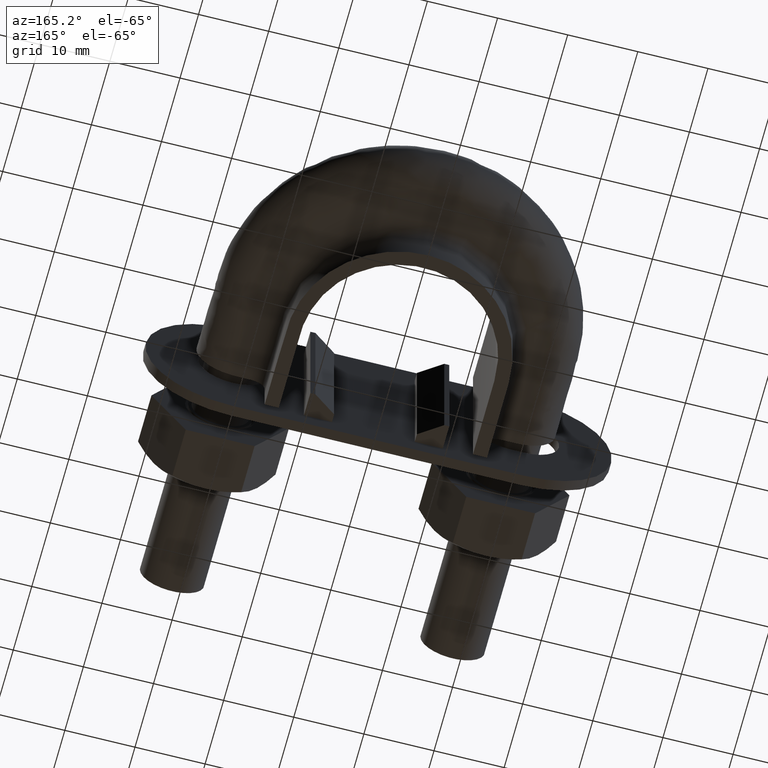
[diagram: clean part render]
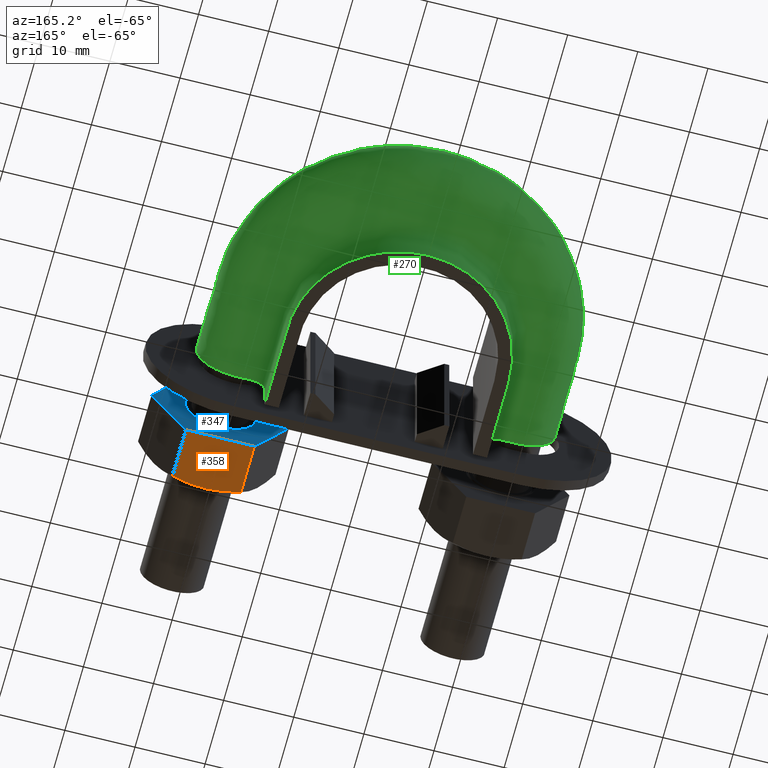
[diagram: same view with three faces highlighted in distinct colors, each labeled with its STEP entity id]
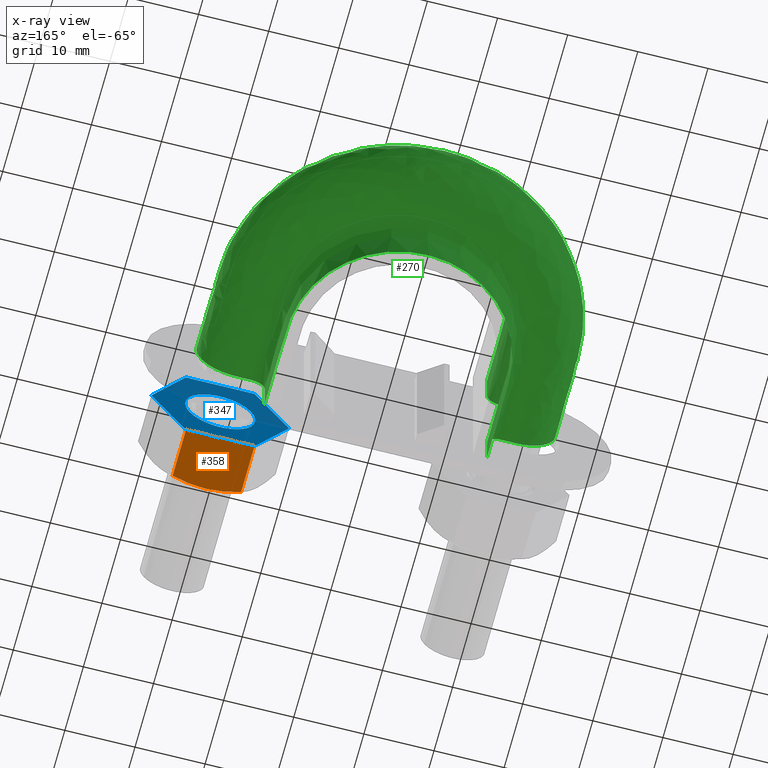
[diagram: x-ray of the same camera — body ghosted, the three highlighted faces saturated]
A machine part, auxiliary view with three faces highlighted in distinct colors.
The next image is the same camera in x-ray (body ghosted, the three faces saturated) — at least one of them is partly hidden behind the body in this view.
Their STEP definitions:

[orange] entity #358 — the highlighted planar face has unit normal (-0, -0, 1).
#358 = ADVANCED_FACE( '', ( #578 ), #579, .F. );
#578 = FACE_OUTER_BOUND( '', #1681, .T. );
#579 = PLANE( '', #1682 );
#1681 = EDGE_LOOP( '', ( #2377, #2378, #2379, #2380, #2381 ) );
#1682 = AXIS2_PLACEMENT_3D( '', #2382, #2383, #2384 );
#2377 = ORIENTED_EDGE( '', *, *, #2596, .F. );
#2378 = ORIENTED_EDGE( '', *, *, #2625, .F. );
#2379 = ORIENTED_EDGE( '', *, *, #2586, .F. );
#2380 = ORIENTED_EDGE( '', *, *, #2604, .F. );
#2381 = ORIENTED_EDGE( '', *, *, #2588, .F. );
#2382 = CARTESIAN_POINT( '', ( 24.9074772881085, 26.0000000000000, -8.50000000000114 ) );
#2383 = DIRECTION( '', ( -1.41838827073296E-029, -6.12303176375715E-017, 1.00000000000000 ) );
#2384 = DIRECTION( '', ( 1.00000000000000, -2.31648034088039E-013, 0.000000000000000 ) );
#2586 = EDGE_CURVE( '', #2908, #2903, #2910, .T. );
#2588 = EDGE_CURVE( '', #2912, #2914, #2915, .F. );
#2596 = EDGE_CURVE( '', #2926, #2912, #2928, .T. );
#2604 = EDGE_CURVE( '', #2914, #2908, #2943, .T. );
#2625 = EDGE_CURVE( '', #2903, #2926, #2975, .T. );
#2903 = VERTEX_POINT( '', #3599 );
#2908 = VERTEX_POINT( '', #3605 );
#2910 = LINE( '', #3607, #3608 );
#2912 = VERTEX_POINT( '', #3610 );
#2914 = VERTEX_POINT( '', #3612 );
#2915 = LINE( '', #3613, #3614 );
#2926 = VERTEX_POINT( '', #3638 );
#2928 = B_SPLINE_CURVE_WITH_KNOTS( '', 3, ( #3640, #3641, #3642, #3643, #3644, #3645 ), .UNSPECIFIED., .F., .F., ( 4, 2, 4 ), ( 8.94996278201734E-016, 0.00246745482903611, 0.00493490965807132 ), .UNSPECIFIED. );
#2943 = LINE( '', #3662, #3663 );
#2975 = B_SPLINE_CURVE_WITH_KNOTS( '', 3, ( #3721, #3722, #3723, #3724, #3725, #3726 ), .UNSPECIFIED., .F., .F., ( 4, 2, 4 ), ( 2.42543128204952E-015, 0.00246745482903700, 0.00493490965807158 ), .UNSPECIFIED. );
#3599 = CARTESIAN_POINT( '', ( 15.1225006406991, 18.7505553499488, -8.50000000000114 ) );
#3605 = CARTESIAN_POINT( '', ( 15.1225006406991, 26.0000000000000, -8.50000000000114 ) );
#3607 = CARTESIAN_POINT( '', ( 15.1225006406991, 26.0000000000000, -8.50000000000114 ) );
#3608 = VECTOR( '', #3966, 1000.00000000000 );
#3610 = CARTESIAN_POINT( '', ( 24.8774993593002, 18.7505553499486, -8.50000000000114 ) );
#3612 = CARTESIAN_POINT( '', ( 24.8774993593009, 26.0000000000000, -8.50000000000114 ) );
#3613 = CARTESIAN_POINT( '', ( 24.8774993593009, 26.0000000000000, -8.50000000000114 ) );
#3614 = VECTOR( '', #3970, 1000.00000000000 );
#3638 = CARTESIAN_POINT( '', ( 19.9999999999990, 18.0000000000023, -8.50000000000057 ) );
#3640 = CARTESIAN_POINT( '', ( 19.9999999999980, 18.0000000000030, -8.50000000000114 ) );
#3641 = CARTESIAN_POINT( '', ( 20.8321659501884, 18.0000000000028, -8.50000000000114 ) );
#3642 = CARTESIAN_POINT( '', ( 21.6533062476840, 18.0716504305318, -8.50000000000114 ) );
#3643 = CARTESIAN_POINT( '', ( 23.2774431756607, 18.3328582843731, -8.50000000000114 ) );
#3644 = CARTESIAN_POINT( '', ( 24.0805717066741, 18.5215585493678, -8.50000000000114 ) );
#3645 = CARTESIAN_POINT( '', ( 24.8774993592996, 18.7505553499484, -8.50000000000114 ) );
#3662 = CARTESIAN_POINT( '', ( 10.2000000000028, 26.0000000000000, -8.50000000000114 ) );
#3663 = VECTOR( '', #3997, 1000.00000000000 );
#3721 = CARTESIAN_POINT( '', ( 15.1225006406968, 18.7505553499495, -8.50000000000114 ) );
#3722 = CARTESIAN_POINT( '', ( 15.9194282933219, 18.5215585493688, -8.50000000000114 ) );
#3723 = CARTESIAN_POINT( '', ( 16.7225568243382, 18.3328582843734, -8.50000000000114 ) );
#3724 = CARTESIAN_POINT( '', ( 18.3466937523144, 18.0716504305320, -8.50000000000114 ) );
#3725 = CARTESIAN_POINT( '', ( 19.1678340498078, 18.0000000000031, -8.50000000000114 ) );
#3726 = CARTESIAN_POINT( '', ( 19.9999999999980, 18.0000000000030, -8.50000000000114 ) );
#3966 = DIRECTION( '', ( -4.89842541528951E-016, -1.00000000000000, -6.12303176911188E-017 ) );
#3970 = DIRECTION( '', ( -4.89842541528951E-016, -1.00000000000000, -6.12303176911188E-017 ) );
#3997 = DIRECTION( '', ( -1.00000000000000, 4.89842541528951E-016, -1.41538894929194E-029 ) );

[blue] entity #347 — the highlighted planar face has unit normal (-0, -1, -0).
#347 = ADVANCED_FACE( '', ( #552, #553 ), #554, .F. );
#552 = FACE_OUTER_BOUND( '', #1655, .T. );
#553 = FACE_BOUND( '', #1656, .T. );
#554 = PLANE( '', #1657 );
#1655 = EDGE_LOOP( '', ( #2291, #2292, #2293, #2294, #2295, #2296, #2297, #2298, #2299, #2300, #2301, #2302 ) );
#1656 = EDGE_LOOP( '', ( #2303 ) );
#1657 = AXIS2_PLACEMENT_3D( '', #2304, #2305, #2306 );
#2291 = ORIENTED_EDGE( '', *, *, #2599, .T. );
#2292 = ORIENTED_EDGE( '', *, *, #2600, .T. );
#2293 = ORIENTED_EDGE( '', *, *, #2601, .T. );
#2294 = ORIENTED_EDGE( '', *, *, #2602, .T. );
#2295 = ORIENTED_EDGE( '', *, *, #2603, .T. );
#2296 = ORIENTED_EDGE( '', *, *, #2593, .T. );
#2297 = ORIENTED_EDGE( '', *, *, #2589, .T. );
#2298 = ORIENTED_EDGE( '', *, *, #2604, .T. );
#2299 = ORIENTED_EDGE( '', *, *, #2585, .T. );
#2300 = ORIENTED_EDGE( '', *, *, #2605, .T. );
#2301 = ORIENTED_EDGE( '', *, *, #2606, .T. );
#2302 = ORIENTED_EDGE( '', *, *, #2607, .T. );
#2303 = ORIENTED_EDGE( '', *, *, #2597, .F. );
#2304 = CARTESIAN_POINT( '', ( 10.2000000000028, 26.0000000000000, 2.27174272232211E-012 ) );
#2305 = DIRECTION( '', ( -4.89842541528951E-016, -1.00000000000000, -6.12303176911189E-017 ) );
#2306 = DIRECTION( '', ( -1.00000000000000, 4.89842541528951E-016, 6.03777548009827E-048 ) );
#2585 = EDGE_CURVE( '', #2908, #2906, #2909, .F. );
#2589 = EDGE_CURVE( '', #2916, #2914, #2917, .F. );
#2593 = EDGE_CURVE( '', #2923, #2916, #2924, .T. );
#2597 = EDGE_CURVE( '', #2929, #2929, #2930, .F. );
#2599 = EDGE_CURVE( '', #2933, #2934, #2935, .F. );
#2600 = EDGE_CURVE( '', #2934, #2936, #2937, .T. );
#2601 = EDGE_CURVE( '', #2936, #2938, #2939, .F. );
#2602 = EDGE_CURVE( '', #2938, #2940, #2941, .T. );
#2603 = EDGE_CURVE( '', #2940, #2923, #2942, .F. );
#2604 = EDGE_CURVE( '', #2914, #2908, #2943, .T. );
#2605 = EDGE_CURVE( '', #2906, #2944, #2945, .T. );
#2606 = EDGE_CURVE( '', #2944, #2946, #2947, .F. );
#2607 = EDGE_CURVE( '', #2946, #2933, #2948, .T. );
#2906 = VERTEX_POINT( '', #3602 );
#2908 = VERTEX_POINT( '', #3605 );
#2909 = CIRCLE( '', #3606, 9.80000000000000 );
#2914 = VERTEX_POINT( '', #3612 );
#2916 = VERTEX_POINT( '', #3615 );
#2917 = CIRCLE( '', #3616, 9.80000000000000 );
#2923 = VERTEX_POINT( '', #3633 );
#2924 = LINE( '', #3634, #3635 );
#2929 = VERTEX_POINT( '', #3646 );
#2930 = CIRCLE( '', #3647, 4.99999999999979 );
#2933 = VERTEX_POINT( '', #3650 );
#2934 = VERTEX_POINT( '', #3651 );
#2935 = CIRCLE( '', #3652, 9.80000000000000 );
#2936 = VERTEX_POINT( '', #3653 );
#2937 = LINE( '', #3654, #3655 );
#2938 = VERTEX_POINT( '', #3656 );
#2939 = CIRCLE( '', #3657, 9.80000000000000 );
#2940 = VERTEX_POINT( '', #3658 );
#2941 = LINE( '', #3659, #3660 );
#2942 = CIRCLE( '', #3661, 9.80000000000000 );
#2943 = LINE( '', #3662, #3663 );
#2944 = VERTEX_POINT( '', #3664 );
#2945 = LINE( '', #3665, #3666 );
#2946 = VERTEX_POINT( '', #3667 );
#2947 = CIRCLE( '', #3668, 9.80000000000000 );
#2948 = LINE( '', #3669, #3670 );
#3602 = CARTESIAN_POINT( '', ( 15.0775337474838, 26.0000000000000, -8.47403835209868 ) );
#3605 = CARTESIAN_POINT( '', ( 15.1225006406991, 26.0000000000000, -8.50000000000114 ) );
#3606 = AXIS2_PLACEMENT_3D( '', #3963, #3964, #3965 );
#3612 = CARTESIAN_POINT( '', ( 24.8774993593009, 26.0000000000000, -8.50000000000114 ) );
#3615 = CARTESIAN_POINT( '', ( 24.9224662525081, 26.0000000000000, -8.47403835210336 ) );
#3616 = AXIS2_PLACEMENT_3D( '', #3971, #3972, #3973 );
#3633 = CARTESIAN_POINT( '', ( 29.7999656118192, 26.0000000000000, -0.0259616478988799 ) );
#3634 = CARTESIAN_POINT( '', ( 24.9112159321623, 26.0000000000000, -8.49352447854369 ) );
#3635 = VECTOR( '', #3975, 1000.00000000000 );
#3646 = CARTESIAN_POINT( '', ( 24.9999999999998, 26.0000000000000, 1.59198825996910E-015 ) );
#3647 = AXIS2_PLACEMENT_3D( '', #3980, #3981, #3982 );
#3650 = CARTESIAN_POINT( '', ( 15.0775337474920, 26.0000000000000, 8.47403835210346 ) );
#3651 = CARTESIAN_POINT( '', ( 15.1225006406991, 26.0000000000000, 8.50000000000113 ) );
#3652 = AXIS2_PLACEMENT_3D( '', #3986, #3987, #3988 );
#3653 = CARTESIAN_POINT( '', ( 24.8774993593048, 26.0000000000000, 8.49999999999887 ) );
#3654 = CARTESIAN_POINT( '', ( 10.2000000000048, 26.0000000000000, 8.50000000000227 ) );
#3655 = VECTOR( '', #3989, 1000.00000000000 );
#3656 = CARTESIAN_POINT( '', ( 24.9224662525162, 26.0000000000000, 8.47403835209869 ) );
#3657 = AXIS2_PLACEMENT_3D( '', #3990, #3991, #3992 );
#3658 = CARTESIAN_POINT( '', ( 29.7999656118192, 26.0000000000000, 0.0259616478991208 ) );
#3659 = CARTESIAN_POINT( '', ( 24.9112159321683, 26.0000000000000, 8.49352447854261 ) );
#3660 = VECTOR( '', #3993, 1000.00000000000 );
#3661 = AXIS2_PLACEMENT_3D( '', #3994, #3995, #3996 );
#3662 = CARTESIAN_POINT( '', ( 10.2000000000028, 26.0000000000000, -8.50000000000114 ) );
#3663 = VECTOR( '', #3997, 1000.00000000000 );
#3664 = CARTESIAN_POINT( '', ( 10.2000343881808, 26.0000000000000, -0.0259616478991151 ) );
#3665 = CARTESIAN_POINT( '', ( 10.1887840678330, 26.0000000000000, -0.00647552145519250 ) );
#3666 = VECTOR( '', #3998, 1000.00000000000 );
#3667 = CARTESIAN_POINT( '', ( 10.2000343881808, 26.0000000000000, 0.0259616478987070 ) );
#3668 = AXIS2_PLACEMENT_3D( '', #3999, #4000, #4001 );
#3669 = CARTESIAN_POINT( '', ( 10.1887840678351, 26.0000000000000, 0.00647552145850918 ) );
#3670 = VECTOR( '', #4002, 1000.00000000000 );
#3963 = CARTESIAN_POINT( '', ( 20.0000000000000, 26.0000000000000, 1.59198825996909E-015 ) );
#3964 = DIRECTION( '', ( -4.89842541528951E-016, -1.00000000000000, -6.12303176911189E-017 ) );
#3965 = DIRECTION( '', ( 1.00000000000000, -4.89842541528951E-016, 0.000000000000000 ) );
#3971 = CARTESIAN_POINT( '', ( 20.0000000000000, 26.0000000000000, 1.59198825996909E-015 ) );
#3972 = DIRECTION( '', ( -4.89842541528951E-016, -1.00000000000000, -6.12303176911189E-017 ) );
#3973 = DIRECTION( '', ( 1.00000000000000, -4.89842541528951E-016, 0.000000000000000 ) );
#3975 = DIRECTION( '', ( -0.500000000000307, 2.97948281366916E-016, -0.866025403784261 ) );
#3980 = CARTESIAN_POINT( '', ( 20.0000000000000, 26.0000000000000, 1.59198825996910E-015 ) );
#3981 = DIRECTION( '', ( -4.89842541528951E-016, -1.00000000000000, -6.12303176911189E-017 ) );
#3982 = DIRECTION( '', ( 1.00000000000000, -4.89842541528951E-016, 0.000000000000000 ) );
#3986 = CARTESIAN_POINT( '', ( 20.0000000000000, 26.0000000000000, 1.59198825996909E-015 ) );
#3987 = DIRECTION( '', ( -4.89842541528951E-016, -1.00000000000000, -6.12303176911189E-017 ) );
#3988 = DIRECTION( '', ( 1.00000000000000, -4.89842541528951E-016, 0.000000000000000 ) );
#3989 = DIRECTION( '', ( 1.00000000000000, -4.89842541528937E-016, -2.31648034088039E-013 ) );
#3990 = CARTESIAN_POINT( '', ( 20.0000000000000, 26.0000000000000, 1.59198825996909E-015 ) );
#3991 = DIRECTION( '', ( -4.89842541528951E-016, -1.00000000000000, -6.12303176911189E-017 ) );
#3992 = DIRECTION( '', ( 1.00000000000000, -4.89842541528951E-016, 0.000000000000000 ) );
#3993 = DIRECTION( '', ( 0.499999999999906, -1.91894260162125E-016, -0.866025403784493 ) );
#3994 = CARTESIAN_POINT( '', ( 20.0000000000000, 26.0000000000000, 1.59198825996909E-015 ) );
#3995 = DIRECTION( '', ( -4.89842541528951E-016, -1.00000000000000, -6.12303176911189E-017 ) );
#3996 = DIRECTION( '', ( 1.00000000000000, -4.89842541528951E-016, 0.000000000000000 ) );
#3997 = DIRECTION( '', ( -1.00000000000000, 4.89842541528951E-016, -1.41538894929194E-029 ) );
#3998 = DIRECTION( '', ( -0.499999999999906, 1.91894260162125E-016, 0.866025403784493 ) );
#3999 = CARTESIAN_POINT( '', ( 20.0000000000000, 26.0000000000000, 1.59198825996909E-015 ) );
#4000 = DIRECTION( '', ( -4.89842541528951E-016, -1.00000000000000, -6.12303176911189E-017 ) );
#4001 = DIRECTION( '', ( 1.00000000000000, -4.89842541528951E-016, 0.000000000000000 ) );
#4002 = DIRECTION( '', ( 0.500000000000307, -2.97948281366916E-016, 0.866025403784261 ) );

[green] entity #270 — the highlighted face is a freeform B-spline surface patch.
#270 = ADVANCED_FACE( '', ( #373 ), #374, .F. );
#373 = FACE_OUTER_BOUND( '', #598, .T. );
#374 = B_SPLINE_SURFACE_WITH_KNOTS( '', 3, 3, ( ( #599, #600, #601, #602, #603, #604, #605, #606, #607, #608, #609, #610, #611, #612, #613, #614, #615, #616 ), ( #617, #618, #619, #620, #621, #622, #623, #624, #625, #626, #627, #628, #629, #630, #631, #632, #633, #634 ), ( #635, #636, #637, #638, #639, #640, #641, #642, #643, #644, #645, #646, #647, #648, #649, #650, #651, #652 ), ( #653, #654, #655, #656, #657, #658, #659, #660, #661, #662, #663, #664, #665, #666, #667, #668, #669, #670 ), ( #671, #672, #673, #674, #675, #676, #677, #678, #679, #680, #681, #682, #683, #684, #685, #686, #687, #688 ), ( #689, #690, #691, #692, #693, #694, #695, #696, #697, #698, #699, #700, #701, #702, #703, #704, #705, #706 ), ( #707, #708, #709, #710, #711, #712, #713, #714, #715, #716, #717, #718, #719, #720, #721, #722, #723, #724 ), ( #725, #726, #727, #728, #729, #730, #731, #732, #733, #734, #735, #736, #737, #738, #739, #740, #741, #742 ), ( #743, #744, #745, #746, #747, #748, #749, #750, #751, #752, #753, #754, #755, #756, #757, #758, #759, #760 ), ( #761, #762, #763, #764, #765, #766, #767, #768, #769, #770, #771, #772, #773, #774, #775, #776, #777, #778 ), ( #779, #780, #781, #782, #783, #784, #785, #786, #787, #788, #789, #790, #791, #792, #793, #794, #795, #796 ), ( #797, #798, #799, #800, #801, #802, #803, #804, #805, #806, #807, #808, #809, #810, #811, #812, #813, #814 ), ( #815, #816, #817, #818, #819, #820, #821, #822, #823, #824, #825, #826, #827, #828, #829, #830, #831, #832 ), ( #833, #834, #835, #836, #837, #838, #839, #840, #841, #842, #843, #844, #845, #846, #847, #848, #849, #850 ), ( #851, #852, #853, #854, #855, #856, #857, #858, #859, #860, #861, #862, #863, #864, #865, #866, #867, #868 ), ( #869, #870, #871, #872, #873, #874, #875, #876, #877, #878, #879, #880, #881, #882, #883, #884, #885, #886 ), ( #887, #888, #889, #890, #891, #892, #893, #894, #895, #896, #897, #898, #899, #900, #901, #902, #903, #904 ), ( #905, #906, #907, #908, #909, #910, #911, #912, #913, #914, #915, #916, #917, #918, #919, #920, #921, #922 ), ( #923, #924, #925, #926, #927, #928, #929, #930, #931, #932, #933, #934, #935, #936, #937, #938, #939, #940 ), ( #941, #942, #943, #944, #945, #946, #947, #948, #949, #950, #951, #952, #953, #954, #955, #956, #957, #958 ), ( #959, #960, #961, #962, #963, #964, #965, #966, #967, #968, #969, #970, #971, #972, #973, #974, #975, #976 ), ( #977, #978, #979, #980, #981, #982, #983, #984, #985, #986, #987, #988, #989, #990, #991, #992, #993, #994 ), ( #995, #996, #997, #998, #999, #1000, #1001, #1002, #1003, #1004, #1005, #1006, #1007, #1008, #1009, #1010, #1011, #1012 ), ( #1013, #1014, #1015, #1016, #1017, #1018, #1019, #1020, #1021, #1022, #1023, #1024, #1025, #1026, #1027, #1028, #1029, #1030 ), ( #1031, #1032, #1033, #1034, #1035, #1036, #1037, #1038, #1039, #1040, #1041, #1042, #1043, #1044, #1045, #1046, #1047, #1048 ), ( #1049, #1050, #1051, #1052, #1053, #1054, #1055, #1056, #1057, #1058, #1059, #1060, #1061, #1062, #1063, #1064, #1065, #1066 ), ( #1067, #1068, #1069, #1070, #1071, #1072, #1073, #1074, #1075, #1076, #1077, #1078, #1079, #1080, #1081, #1082, #1083, #1084 ), ( #1085, #1086, #1087, #1088, #1089, #1090, #1091, #1092, #1093, #1094, #1095, #1096, #1097, #1098, #1099, #1100, #1101, #1102 ), ( #1103, #1104, #1105, #1106, #1107, #1108, #1109, #1110, #1111, #1112, #1113, #1114, #1115, #1116, #1117, #1118, #1119, #1120 ), ( #1121, #1122, #1123, #1124, #1125, #1126, #1127, #1128, #1129, #1130, #1131, #1132, #1133, #1134, #1135, #1136, #1137, #1138 ), ( #1139, #1140, #1141, #1142, #1143, #1144, #1145, #1146, #1147, #1148, #1149, #1150, #1151, #1152, #1153, #1154, #1155, #1156 ) ), .UNSPECIFIED., .F., .F., .F., ( 4, 3, 1, 1, 1, 3, 3, 1, 1, 1, 3, 3, 1, 1, 1, 3, 4 ), ( 4, 3, 1, 1, 1, 1, 1, 1, 1, 1, 3, 4 ), ( 0.000000000000000, 0.0526315789473684, 0.105263157894737, 0.157894736842105, 0.210526315789474, 0.263157894736842, 0.315789473684211, 0.368421052631579, 0.421052631578947, 0.473684210526316, 0.526315789473684, 0.578947368421053, 0.631578947368421, 0.684210526315789, 0.736842105263158, 0.789473684210526, 0.842105263157895 ), ( 0.000000000000000, 1.00000000000000, 1.50000000000000, 1.75000000000000, 2.00000000000000, 3.00000000000000, 4.00000000000000, 5.00000000000000, 5.25000000000000, 5.50000000000000, 6.00000000000000, 7.00000000000000 ), .UNSPECIFIED. );
#598 = EDGE_LOOP( '', ( #1716, #1717, #1718, #1719 ) );
#599 = CARTESIAN_POINT( '', ( -15.8500000000000, 30.0500000000000, 12.5000000000000 ) );
#600 = CARTESIAN_POINT( '', ( -15.8500000000000, 35.4166666666667, 12.5000000000000 ) );
#601 = CARTESIAN_POINT( '', ( -15.8500000000000, 40.7833333333333, 12.5000000000000 ) );
#602 = CARTESIAN_POINT( '', ( -15.8500000000000, 46.1500000000000, 12.5000000000000 ) );
#603 = CARTESIAN_POINT( '', ( -15.8500000000000, 47.7930222221415, 12.5000000000000 ) );
#604 = CARTESIAN_POINT( '', ( -15.4471644107632, 50.2907471890249, 12.5000000000000 ) );
#605 = CARTESIAN_POINT( '', ( -14.1686079776779, 53.3865460861670, 12.5000000000000 ) );
#606 = CARTESIAN_POINT( '', ( -11.5879210877828, 57.6228758250557, 12.5000000000000 ) );
#607 = CARTESIAN_POINT( '', ( -5.22635801800513, 62.2532086284846, 12.5000000000000 ) );
#608 = CARTESIAN_POINT( '', ( 5.22635801800516, 62.2532086284846, 12.5000000000000 ) );
#609 = CARTESIAN_POINT( '', ( 11.5879210877829, 57.6228758250557, 12.5000000000000 ) );
#610 = CARTESIAN_POINT( '', ( 14.1686079776779, 53.3865460861670, 12.5000000000000 ) );
#611 = CARTESIAN_POINT( '', ( 15.4471644107632, 50.2907471890249, 12.5000000000000 ) );
#612 = CARTESIAN_POINT( '', ( 15.8500000000000, 47.7930222221415, 12.5000000000000 ) );
#613 = CARTESIAN_POINT( '', ( 15.8500000000000, 46.1500000000000, 12.5000000000000 ) );
#614 = CARTESIAN_POINT( '', ( 15.8500000000000, 40.7833333333333, 12.5000000000000 ) );
#615 = CARTESIAN_POINT( '', ( 15.8500000000000, 35.4166666666667, 12.5000000000000 ) );
#616 = CARTESIAN_POINT( '', ( 15.8500000000000, 30.0500000000000, 12.5000000000000 ) );
#617 = CARTESIAN_POINT( '', ( -15.8500000000000, 30.0500000000000, 10.8666666666667 ) );
#618 = CARTESIAN_POINT( '', ( -15.8500000000000, 35.4166666666667, 10.8666666666667 ) );
#619 = CARTESIAN_POINT( '', ( -15.8500000000000, 40.7833333333333, 10.8666666666667 ) );
#620 = CARTESIAN_POINT( '', ( -15.8500000000000, 46.1500000000000, 10.8666666666667 ) );
#621 = CARTESIAN_POINT( '', ( -15.8500000000000, 47.7930222221415, 10.8666666666667 ) );
#622 = CARTESIAN_POINT( '', ( -15.4471644107632, 50.2907471890249, 10.8666666666667 ) );
#623 = CARTESIAN_POINT( '', ( -14.1686079776779, 53.3865460861670, 10.8666666666667 ) );
#624 = CARTESIAN_POINT( '', ( -11.5879210877828, 57.6228758250557, 10.8666666666667 ) );
#625 = CARTESIAN_POINT( '', ( -5.22635801800513, 62.2532086284846, 10.8666666666667 ) );
#626 = CARTESIAN_POINT( '', ( 5.22635801800516, 62.2532086284846, 10.8666666666666 ) );
#627 = CARTESIAN_POINT( '', ( 11.5879210877829, 57.6228758250557, 10.8666666666667 ) );
#628 = CARTESIAN_POINT( '', ( 14.1686079776779, 53.3865460861670, 10.8666666666666 ) );
#629 = CARTESIAN_POINT( '', ( 15.4471644107632, 50.2907471890249, 10.8666666666667 ) );
#630 = CARTESIAN_POINT( '', ( 15.8500000000000, 47.7930222221415, 10.8666666666667 ) );
#631 = CARTESIAN_POINT( '', ( 15.8500000000000, 46.1500000000000, 10.8666666666667 ) );
#632 = CARTESIAN_POINT( '', ( 15.8500000000000, 40.7833333333333, 10.8666666666667 ) );
#633 = CARTESIAN_POINT( '', ( 15.8500000000000, 35.4166666666667, 10.8666666666667 ) );
#634 = CARTESIAN_POINT( '', ( 15.8500000000000, 30.0500000000000, 10.8666666666667 ) );
#635 = CARTESIAN_POINT( '', ( -15.8500000000000, 30.0500000000000, 9.23333333333332 ) );
#636 = CARTESIAN_POINT( '', ( -15.8500000000000, 35.4166666666667, 9.23333333333332 ) );
#637 = CARTESIAN_POINT( '', ( -15.8500000000000, 40.7833333333333, 9.23333333333332 ) );
#638 = CARTESIAN_POINT( '', ( -15.8500000000000, 46.1500000000000, 9.23333333333332 ) );
#639 = CARTESIAN_POINT( '', ( -15.8500000000000, 47.7930222221415, 9.23333333333332 ) );
#640 = CARTESIAN_POINT( '', ( -15.4471644107632, 50.2907471890249, 9.23333333333331 ) );
#641 = CARTESIAN_POINT( '', ( -14.1686079776779, 53.3865460861670, 9.23333333333332 ) );
#642 = CARTESIAN_POINT( '', ( -11.5879210877828, 57.6228758250557, 9.23333333333332 ) );
#643 = CARTESIAN_POINT( '', ( -5.22635801800513, 62.2532086284846, 9.23333333333333 ) );
#644 = CARTESIAN_POINT( '', ( 5.22635801800516, 62.2532086284846, 9.23333333333331 ) );
#645 = CARTESIAN_POINT( '', ( 11.5879210877829, 57.6228758250557, 9.23333333333333 ) );
#646 = CARTESIAN_POINT( '', ( 14.1686079776779, 53.3865460861670, 9.23333333333331 ) );
#647 = CARTESIAN_POINT( '', ( 15.4471644107632, 50.2907471890249, 9.23333333333332 ) );
#648 = CARTESIAN_POINT( '', ( 15.8500000000000, 47.7930222221415, 9.23333333333332 ) );
#649 = CARTESIAN_POINT( '', ( 15.8500000000000, 46.1500000000000, 9.23333333333332 ) );
#650 = CARTESIAN_POINT( '', ( 15.8500000000000, 40.7833333333333, 9.23333333333332 ) );
#651 = CARTESIAN_POINT( '', ( 15.8500000000000, 35.4166666666667, 9.23333333333332 ) );
#652 = CARTESIAN_POINT( '', ( 15.8500000000000, 30.0500000000000, 9.23333333333332 ) );
#653 = CARTESIAN_POINT( '', ( -15.8500000000000, 30.0500000000000, 7.59999999999998 ) );
#654 = CARTESIAN_POINT( '', ( -15.8500000000000, 35.4166666666667, 7.59999999999998 ) );
#655 = CARTESIAN_POINT( '', ( -15.8500000000000, 40.7833333333333, 7.59999999999998 ) );
#656 = CARTESIAN_POINT( '', ( -15.8500000000000, 46.1500000000000, 7.59999999999998 ) );
#657 = CARTESIAN_POINT( '', ( -15.8500000000000, 47.7930222221415, 7.59999999999998 ) );
#658 = CARTESIAN_POINT( '', ( -15.4471644107632, 50.2907471890249, 7.59999999999998 ) );
#659 = CARTESIAN_POINT( '', ( -14.1686079776779, 53.3865460861670, 7.59999999999998 ) );
#660 = CARTESIAN_POINT( '', ( -11.5879210877828, 57.6228758250557, 7.59999999999998 ) );
#661 = CARTESIAN_POINT( '', ( -5.22635801800513, 62.2532086284846, 7.59999999999999 ) );
#662 = CARTESIAN_POINT( '', ( 5.22635801800516, 62.2532086284846, 7.59999999999997 ) );
#663 = CARTESIAN_POINT( '', ( 11.5879210877829, 57.6228758250557, 7.59999999999999 ) );
#664 = CARTESIAN_POINT( '', ( 14.1686079776779, 53.3865460861670, 7.59999999999998 ) );
#665 = CARTESIAN_POINT( '', ( 15.4471644107632, 50.2907471890249, 7.59999999999998 ) );
#666 = CARTESIAN_POINT( '', ( 15.8500000000000, 47.7930222221415, 7.59999999999998 ) );
#667 = CARTESIAN_POINT( '', ( 15.8500000000000, 46.1500000000000, 7.59999999999998 ) );
#668 = CARTESIAN_POINT( '', ( 15.8500000000000, 40.7833333333333, 7.59999999999998 ) );
#669 = CARTESIAN_POINT( '', ( 15.8500000000000, 35.4166666666667, 7.59999999999998 ) );
#670 = CARTESIAN_POINT( '', ( 15.8500000000000, 30.0500000000000, 7.59999999999998 ) );
#671 = CARTESIAN_POINT( '', ( -15.8500000000000, 30.0500000000000, 7.33823584172332 ) );
#672 = CARTESIAN_POINT( '', ( -15.8500000000000, 35.4166666666667, 7.33823584172332 ) );
#673 = CARTESIAN_POINT( '', ( -15.8500000000000, 40.7833333333333, 7.33823584172332 ) );
#674 = CARTESIAN_POINT( '', ( -15.8500000000000, 46.1500000000000, 7.33823584172332 ) );
#675 = CARTESIAN_POINT( '', ( -15.8500000000000, 47.7930222221415, 7.33823584172332 ) );
#676 = CARTESIAN_POINT( '', ( -15.4471644107632, 50.2907471890249, 7.33823584172332 ) );
#677 = CARTESIAN_POINT( '', ( -14.1686079776779, 53.3865460861670, 7.33823584172332 ) );
#678 = CARTESIAN_POINT( '', ( -11.5879210877828, 57.6228758250557, 7.33823584172332 ) );
#679 = CARTESIAN_POINT( '', ( -5.22635801800512, 62.2532086284846, 7.33823584172333 ) );
#680 = CARTESIAN_POINT( '', ( 5.22635801800516, 62.2532086284846, 7.33823584172331 ) );
#681 = CARTESIAN_POINT( '', ( 11.5879210877829, 57.6228758250557, 7.33823584172333 ) );
#682 = CARTESIAN_POINT( '', ( 14.1686079776779, 53.3865460861670, 7.33823584172331 ) );
#683 = CARTESIAN_POINT( '', ( 15.4471644107632, 50.2907471890249, 7.33823584172332 ) );
#684 = CARTESIAN_POINT( '', ( 15.8500000000000, 47.7930222221415, 7.33823584172332 ) );
#685 = CARTESIAN_POINT( '', ( 15.8500000000000, 46.1500000000000, 7.33823584172332 ) );
#686 = CARTESIAN_POINT( '', ( 15.8500000000000, 40.7833333333333, 7.33823584172332 ) );
#687 = CARTESIAN_POINT( '', ( 15.8500000000000, 35.4166666666667, 7.33823584172332 ) );
#688 = CARTESIAN_POINT( '', ( 15.8500000000000, 30.0500000000000, 7.33823584172332 ) );
#689 = CARTESIAN_POINT( '', ( -15.9541362568359, 30.0500000000000, 6.81470752516999 ) );
#690 = CARTESIAN_POINT( '', ( -15.9541362568359, 35.4166666666667, 6.81470752516999 ) );
#691 = CARTESIAN_POINT( '', ( -15.9541362568359, 40.7833333333333, 6.81470752516999 ) );
#692 = CARTESIAN_POINT( '', ( -15.9541362568359, 46.1500000000000, 6.81470752516999 ) );
#693 = CARTESIAN_POINT( '', ( -15.9541362568359, 47.8043008624542, 6.81470752516999 ) );
#694 = CARTESIAN_POINT( '', ( -15.5486136031007, 50.3181109096887, 6.81470752516999 ) );
#695 = CARTESIAN_POINT( '', ( -14.2619323017759, 53.4337199575683, 6.81470752516999 ) );
#696 = CARTESIAN_POINT( '', ( -11.6637657839457, 57.6987055899314, 6.81470752516999 ) );
#697 = CARTESIAN_POINT( '', ( -5.26084038438269, 62.3588794372083, 6.81470752517000 ) );
#698 = CARTESIAN_POINT( '', ( 5.26084038438273, 62.3588794372083, 6.81470752516999 ) );
#699 = CARTESIAN_POINT( '', ( 11.6637657839457, 57.6987055899314, 6.81470752517000 ) );
#700 = CARTESIAN_POINT( '', ( 14.2619323017759, 53.4337199575683, 6.81470752516999 ) );
#701 = CARTESIAN_POINT( '', ( 15.5486136031007, 50.3181109096888, 6.81470752516999 ) );
#702 = CARTESIAN_POINT( '', ( 15.9541362568359, 47.8043008624542, 6.81470752516999 ) );
#703 = CARTESIAN_POINT( '', ( 15.9541362568359, 46.1500000000000, 6.81470752516999 ) );
#704 = CARTESIAN_POINT( '', ( 15.9541362568359, 40.7833333333333, 6.81470752516999 ) );
#705 = CARTESIAN_POINT( '', ( 15.9541362568359, 35.4166666666667, 6.81470752516999 ) );
#706 = CARTESIAN_POINT( '', ( 15.9541362568359, 30.0500000000000, 6.81470752516999 ) );
#707 = CARTESIAN_POINT( '', ( -16.3989687109389, 30.0500000000000, 6.14896871093886 ) );
#708 = CARTESIAN_POINT( '', ( -16.3989687109389, 35.4166666666667, 6.14896871093886 ) );
#709 = CARTESIAN_POINT( '', ( -16.3989687109389, 40.7833333333333, 6.14896871093886 ) );
#710 = CARTESIAN_POINT( '', ( -16.3989687109389, 46.1500000000000, 6.14896871093886 ) );
#711 = CARTESIAN_POINT( '', ( -16.3989687109389, 47.8524791377414, 6.14896871093886 ) );
#712 = CARTESIAN_POINT( '', ( -15.9819678887780, 50.4349988350486, 6.14896871093886 ) );
#713 = CARTESIAN_POINT( '', ( -14.6605800866819, 53.6352296874415, 6.14896871093886 ) );
#714 = CARTESIAN_POINT( '', ( -11.9877469154933, 58.0226229404160, 6.14896871093886 ) );
#715 = CARTESIAN_POINT( '', ( -5.40813659153541, 62.8102669423852, 6.14896871093887 ) );
#716 = CARTESIAN_POINT( '', ( 5.40813659153544, 62.8102669423853, 6.14896871093885 ) );
#717 = CARTESIAN_POINT( '', ( 11.9877469154933, 58.0226229404160, 6.14896871093887 ) );
#718 = CARTESIAN_POINT( '', ( 14.6605800866819, 53.6352296874415, 6.14896871093886 ) );
#719 = CARTESIAN_POINT( '', ( 15.9819678887781, 50.4349988350486, 6.14896871093886 ) );
#720 = CARTESIAN_POINT( '', ( 16.3989687109389, 47.8524791377414, 6.14896871093886 ) );
#721 = CARTESIAN_POINT( '', ( 16.3989687109389, 46.1500000000000, 6.14896871093886 ) );
#722 = CARTESIAN_POINT( '', ( 16.3989687109389, 40.7833333333333, 6.14896871093886 ) );
#723 = CARTESIAN_POINT( '', ( 16.3989687109389, 35.4166666666667, 6.14896871093886 ) );
#724 = CARTESIAN_POINT( '', ( 16.3989687109389, 30.0500000000000, 6.14896871093886 ) );
#725 = CARTESIAN_POINT( '', ( -17.0647075251700, 30.0500000000000, 5.70413625683589 ) );
#726 = CARTESIAN_POINT( '', ( -17.0647075251700, 35.4166666666667, 5.70413625683589 ) );
#727 = CARTESIAN_POINT( '', ( -17.0647075251700, 40.7833333333333, 5.70413625683589 ) );
#728 = CARTESIAN_POINT( '', ( -17.0647075251700, 46.1500000000000, 5.70413625683589 ) );
#729 = CARTESIAN_POINT( '', ( -17.0647075251700, 47.9245830221716, 5.70413625683589 ) );
#730 = CARTESIAN_POINT( '', ( -16.6305284099986, 50.6099339777281, 5.70413625683589 ) );
#731 = CARTESIAN_POINT( '', ( -15.2571986588459, 53.9368103104028, 5.70413625683589 ) );
#732 = CARTESIAN_POINT( '', ( -12.4726189439622, 58.5073995137786, 5.70413625683589 ) );
#733 = CARTESIAN_POINT( '', ( -5.62858094397893, 63.4858160838282, 5.70413625683590 ) );
#734 = CARTESIAN_POINT( '', ( 5.62858094397896, 63.4858160838282, 5.70413625683589 ) );
#735 = CARTESIAN_POINT( '', ( 12.4726189439623, 58.5073995137786, 5.70413625683590 ) );
#736 = CARTESIAN_POINT( '', ( 15.2571986588460, 53.9368103104028, 5.70413625683589 ) );
#737 = CARTESIAN_POINT( '', ( 16.6305284099986, 50.6099339777282, 5.70413625683589 ) );
#738 = CARTESIAN_POINT( '', ( 17.0647075251700, 47.9245830221715, 5.70413625683589 ) );
#739 = CARTESIAN_POINT( '', ( 17.0647075251700, 46.1500000000000, 5.70413625683589 ) );
#740 = CARTESIAN_POINT( '', ( 17.0647075251700, 40.7833333333333, 5.70413625683589 ) );
#741 = CARTESIAN_POINT( '', ( 17.0647075251700, 35.4166666666667, 5.70413625683589 ) );
#742 = CARTESIAN_POINT( '', ( 17.0647075251700, 30.0500000000000, 5.70413625683589 ) );
#743 = CARTESIAN_POINT( '', ( -17.5882358417233, 30.0500000000000, 5.59999999999998 ) );
#744 = CARTESIAN_POINT( '', ( -17.5882358417233, 35.4166666666667, 5.59999999999998 ) );
#745 = CARTESIAN_POINT( '', ( -17.5882358417233, 40.7833333333333, 5.59999999999998 ) );
#746 = CARTESIAN_POINT( '', ( -17.5882358417233, 46.1500000000000, 5.59999999999998 ) );
#747 = CARTESIAN_POINT( '', ( -17.5882358417233, 47.9812845760328, 5.59999999999998 ) );
#748 = CARTESIAN_POINT( '', ( -17.1405479410810, 50.7475006912730, 5.59999999999998 ) );
#749 = CARTESIAN_POINT( '', ( -15.7263717189600, 54.1739693770954, 5.59999999999998 ) );
#750 = CARTESIAN_POINT( '', ( -12.8539159802501, 58.8886214854165, 5.59999999999998 ) );
#751 = CARTESIAN_POINT( '', ( -5.80193550625081, 64.0170591136899, 5.59999999999999 ) );
#752 = CARTESIAN_POINT( '', ( 5.80193550625084, 64.0170591136900, 5.59999999999998 ) );
#753 = CARTESIAN_POINT( '', ( 12.8539159802502, 58.8886214854165, 5.59999999999999 ) );
#754 = CARTESIAN_POINT( '', ( 15.7263717189600, 54.1739693770954, 5.59999999999998 ) );
#755 = CARTESIAN_POINT( '', ( 17.1405479410811, 50.7475006912730, 5.59999999999999 ) );
#756 = CARTESIAN_POINT( '', ( 17.5882358417234, 47.9812845760328, 5.59999999999998 ) );
#757 = CARTESIAN_POINT( '', ( 17.5882358417234, 46.1500000000000, 5.59999999999998 ) );
#758 = CARTESIAN_POINT( '', ( 17.5882358417234, 40.7833333333333, 5.59999999999998 ) );
#759 = CARTESIAN_POINT( '', ( 17.5882358417234, 35.4166666666667, 5.59999999999998 ) );
#760 = CARTESIAN_POINT( '', ( 17.5882358417234, 30.0500000000000, 5.59999999999998 ) );
#761 = CARTESIAN_POINT( '', ( -17.8500000000000, 30.0500000000000, 5.59999999999998 ) );
#762 = CARTESIAN_POINT( '', ( -17.8500000000000, 35.4166666666667, 5.59999999999998 ) );
#763 = CARTESIAN_POINT( '', ( -17.8500000000000, 40.7833333333333, 5.59999999999998 ) );
#764 = CARTESIAN_POINT( '', ( -17.8500000000000, 46.1500000000000, 5.59999999999998 ) );
#765 = CARTESIAN_POINT( '', ( -17.8500000000000, 48.0096353529635, 5.59999999999998 ) );
#766 = CARTESIAN_POINT( '', ( -17.3955577066223, 50.8162840480455, 5.59999999999998 ) );
#767 = CARTESIAN_POINT( '', ( -15.9609582490170, 54.2925489104417, 5.59999999999998 ) );
#768 = CARTESIAN_POINT( '', ( -13.0445644983941, 59.0792324712354, 5.59999999999998 ) );
#769 = CARTESIAN_POINT( '', ( -5.88861278738676, 64.2826806286208, 5.59999999999999 ) );
#770 = CARTESIAN_POINT( '', ( 5.88861278738680, 64.2826806286208, 5.59999999999998 ) );
#771 = CARTESIAN_POINT( '', ( 13.0445644983941, 59.0792324712354, 5.59999999999999 ) );
#772 = CARTESIAN_POINT( '', ( 15.9609582490170, 54.2925489104416, 5.59999999999998 ) );
#773 = CARTESIAN_POINT( '', ( 17.3955577066223, 50.8162840480455, 5.59999999999999 ) );
#774 = CARTESIAN_POINT( '', ( 17.8500000000000, 48.0096353529635, 5.59999999999998 ) );
#775 = CARTESIAN_POINT( '', ( 17.8500000000000, 46.1500000000000, 5.59999999999998 ) );
#776 = CARTESIAN_POINT( '', ( 17.8500000000000, 40.7833333333333, 5.59999999999998 ) );
#777 = CARTESIAN_POINT( '', ( 17.8500000000000, 35.4166666666667, 5.59999999999998 ) );
#778 = CARTESIAN_POINT( '', ( 17.8500000000000, 30.0500000000000, 5.59999999999998 ) );
#779 = CARTESIAN_POINT( '', ( -18.5666666666667, 30.0500000000000, 5.60000000000000 ) );
#780 = CARTESIAN_POINT( '', ( -18.5666666666667, 35.4166666666667, 5.60000000000000 ) );
#781 = CARTESIAN_POINT( '', ( -18.5666666666667, 40.7833333333333, 5.60000000000000 ) );
#782 = CARTESIAN_POINT( '', ( -18.5666666666667, 46.1500000000000, 5.60000000000000 ) );
#783 = CARTESIAN_POINT( '', ( -18.5666666666667, 48.0872550581747, 5.60000000000000 ) );
#784 = CARTESIAN_POINT( '', ( -18.0937319709718, 51.0046014225279, 5.60000000000000 ) );
#785 = CARTESIAN_POINT( '', ( -16.6032170962468, 54.6171999224734, 5.60000000000000 ) );
#786 = CARTESIAN_POINT( '', ( -13.5665283871965, 59.6010936027831, 5.60000000000000 ) );
#787 = CARTESIAN_POINT( '', ( -6.12592074641518, 65.0099080953363, 5.60000000000001 ) );
#788 = CARTESIAN_POINT( '', ( 6.12592074641521, 65.0099080953363, 5.59999999999999 ) );
#789 = CARTESIAN_POINT( '', ( 13.5665283871965, 59.6010936027832, 5.60000000000001 ) );
#790 = CARTESIAN_POINT( '', ( 16.6032170962469, 54.6171999224734, 5.60000000000000 ) );
#791 = CARTESIAN_POINT( '', ( 18.0937319709718, 51.0046014225279, 5.60000000000000 ) );
#792 = CARTESIAN_POINT( '', ( 18.5666666666667, 48.0872550581747, 5.60000000000000 ) );
#793 = CARTESIAN_POINT( '', ( 18.5666666666667, 46.1500000000000, 5.60000000000000 ) );
#794 = CARTESIAN_POINT( '', ( 18.5666666666667, 40.7833333333333, 5.60000000000000 ) );
#795 = CARTESIAN_POINT( '', ( 18.5666666666667, 35.4166666666667, 5.60000000000000 ) );
#796 = CARTESIAN_POINT( '', ( 18.5666666666667, 30.0500000000000, 5.60000000000000 ) );
#797 = CARTESIAN_POINT( '', ( -19.2833333333333, 30.0500000000000, 5.60000000000000 ) );
#798 = CARTESIAN_POINT( '', ( -19.2833333333333, 35.4166666666667, 5.60000000000000 ) );
#799 = CARTESIAN_POINT( '', ( -19.2833333333333, 40.7833333333333, 5.60000000000000 ) );
#800 = CARTESIAN_POINT( '', ( -19.2833333333333, 46.1500000000000, 5.60000000000000 ) );
#801 = CARTESIAN_POINT( '', ( -19.2833333333333, 48.1648747633859, 5.60000000000000 ) );
#802 = CARTESIAN_POINT( '', ( -18.7919062353213, 51.1929187970102, 5.60000000000000 ) );
#803 = CARTESIAN_POINT( '', ( -17.2454759434767, 54.9418509345052, 5.60000000000000 ) );
#804 = CARTESIAN_POINT( '', ( -14.0884922759988, 60.1229547343309, 5.60000000000000 ) );
#805 = CARTESIAN_POINT( '', ( -6.36322870544359, 65.7371355620517, 5.60000000000001 ) );
#806 = CARTESIAN_POINT( '', ( 6.36322870544363, 65.7371355620517, 5.59999999999999 ) );
#807 = CARTESIAN_POINT( '', ( 14.0884922759989, 60.1229547343308, 5.60000000000001 ) );
#808 = CARTESIAN_POINT( '', ( 17.2454759434767, 54.9418509345052, 5.60000000000000 ) );
#809 = CARTESIAN_POINT( '', ( 18.7919062353213, 51.1929187970103, 5.60000000000000 ) );
#810 = CARTESIAN_POINT( '', ( 19.2833333333334, 48.1648747633859, 5.60000000000000 ) );
#811 = CARTESIAN_POINT( '', ( 19.2833333333334, 46.1500000000000, 5.60000000000000 ) );
#812 = CARTESIAN_POINT( '', ( 19.2833333333334, 40.7833333333333, 5.60000000000000 ) );
#813 = CARTESIAN_POINT( '', ( 19.2833333333334, 35.4166666666667, 5.60000000000000 ) );
#814 = CARTESIAN_POINT( '', ( 19.2833333333334, 30.0500000000000, 5.60000000000000 ) );
#815 = CARTESIAN_POINT( '', ( -20.0000000000000, 30.0500000000000, 5.60000000000000 ) );
#816 = CARTESIAN_POINT( '', ( -20.0000000000000, 35.4166666666667, 5.60000000000000 ) );
#817 = CARTESIAN_POINT( '', ( -20.0000000000000, 40.7833333333333, 5.60000000000000 ) );
#818 = CARTESIAN_POINT( '', ( -20.0000000000000, 46.1500000000000, 5.60000000000000 ) );
#819 = CARTESIAN_POINT( '', ( -20.0000000000000, 48.2424944685971, 5.60000000000000 ) );
#820 = CARTESIAN_POINT( '', ( -19.4900804996708, 51.3812361714926, 5.60000000000000 ) );
#821 = CARTESIAN_POINT( '', ( -17.8877347907065, 55.2665019465370, 5.60000000000000 ) );
#822 = CARTESIAN_POINT( '', ( -14.6104561648012, 60.6448158658786, 5.60000000000000 ) );
#823 = CARTESIAN_POINT( '', ( -6.60053666447201, 66.4643630287672, 5.60000000000001 ) );
#824 = CARTESIAN_POINT( '', ( 6.60053666447204, 66.4643630287672, 5.59999999999999 ) );
#825 = CARTESIAN_POINT( '', ( 14.6104561648012, 60.6448158658785, 5.60000000000001 ) );
#826 = CARTESIAN_POINT( '', ( 17.8877347907065, 55.2665019465369, 5.60000000000000 ) );
#827 = CARTESIAN_POINT( '', ( 19.4900804996708, 51.3812361714926, 5.60000000000000 ) );
#828 = CARTESIAN_POINT( '', ( 20.0000000000000, 48.2424944685970, 5.60000000000000 ) );
#829 = CARTESIAN_POINT( '', ( 20.0000000000000, 46.1500000000000, 5.60000000000000 ) );
#830 = CARTESIAN_POINT( '', ( 20.0000000000000, 40.7833333333333, 5.60000000000000 ) );
#831 = CARTESIAN_POINT( '', ( 20.0000000000000, 35.4166666666667, 5.60000000000000 ) );
#832 = CARTESIAN_POINT( '', ( 20.0000000000000, 30.0500000000000, 5.60000000000000 ) );
#833 = CARTESIAN_POINT( '', ( -21.4627416997969, 30.0500000000000, 5.60000000000001 ) );
#834 = CARTESIAN_POINT( '', ( -21.4627416997969, 35.4166666666667, 5.60000000000001 ) );
#835 = CARTESIAN_POINT( '', ( -21.4627416997969, 40.7833333333333, 5.60000000000001 ) );
#836 = CARTESIAN_POINT( '', ( -21.4627416997969, 46.1500000000000, 5.60000000000001 ) );
#837 = CARTESIAN_POINT( '', ( -21.4627416997969, 48.4009189981855, 5.60000000000001 ) );
#838 = CARTESIAN_POINT( '', ( -20.9150785603997, 51.7655985107275, 5.60000000000000 ) );
#839 = CARTESIAN_POINT( '', ( -19.1986075319715, 55.9291260021372, 5.60000000000001 ) );
#840 = CARTESIAN_POINT( '', ( -15.6758026940190, 61.7099526639503, 5.60000000000000 ) );
#841 = CARTESIAN_POINT( '', ( -7.08489049800397, 67.9486596903520, 5.60000000000001 ) );
#842 = CARTESIAN_POINT( '', ( 7.08489049800400, 67.9486596903519, 5.60000000000000 ) );
#843 = CARTESIAN_POINT( '', ( 15.6758026940190, 61.7099526639503, 5.60000000000001 ) );
#844 = CARTESIAN_POINT( '', ( 19.1986075319716, 55.9291260021371, 5.60000000000000 ) );
#845 = CARTESIAN_POINT( '', ( 20.9150785603997, 51.7655985107275, 5.60000000000001 ) );
#846 = CARTESIAN_POINT( '', ( 21.4627416997969, 48.4009189981855, 5.60000000000001 ) );
#847 = CARTESIAN_POINT( '', ( 21.4627416997969, 46.1500000000000, 5.60000000000001 ) );
#848 = CARTESIAN_POINT( '', ( 21.4627416997969, 40.7833333333333, 5.60000000000001 ) );
#849 = CARTESIAN_POINT( '', ( 21.4627416997969, 35.4166666666667, 5.60000000000001 ) );
#850 = CARTESIAN_POINT( '', ( 21.4627416997969, 30.0500000000000, 5.60000000000001 ) );
#851 = CARTESIAN_POINT( '', ( -24.3882250993908, 30.0500000000000, 4.38822509939086 ) );
#852 = CARTESIAN_POINT( '', ( -24.3882250993908, 35.4166666666667, 4.38822509939086 ) );
#853 = CARTESIAN_POINT( '', ( -24.3882250993908, 40.7833333333333, 4.38822509939086 ) );
#854 = CARTESIAN_POINT( '', ( -24.3882250993908, 46.1500000000000, 4.38822509939086 ) );
#855 = CARTESIAN_POINT( '', ( -24.3882250993908, 48.7177680573623, 4.38822509939086 ) );
#856 = CARTESIAN_POINT( '', ( -23.7650746818577, 52.5343231891973, 4.38822509939086 ) );
#857 = CARTESIAN_POINT( '', ( -21.8203530145016, 57.2543741133376, 4.38822509939086 ) );
#858 = CARTESIAN_POINT( '', ( -17.8064957524545, 63.8402262600938, 4.38822509939086 ) );
#859 = CARTESIAN_POINT( '', ( -8.05359816506789, 70.9172530135215, 4.38822509939087 ) );
#860 = CARTESIAN_POINT( '', ( 8.05359816506792, 70.9172530135215, 4.38822509939086 ) );
#861 = CARTESIAN_POINT( '', ( 17.8064957524546, 63.8402262600937, 4.38822509939087 ) );
#862 = CARTESIAN_POINT( '', ( 21.8203530145016, 57.2543741133375, 4.38822509939086 ) );
#863 = CARTESIAN_POINT( '', ( 23.7650746818577, 52.5343231891973, 4.38822509939086 ) );
#864 = CARTESIAN_POINT( '', ( 24.3882250993909, 48.7177680573623, 4.38822509939086 ) );
#865 = CARTESIAN_POINT( '', ( 24.3882250993909, 46.1500000000000, 4.38822509939086 ) );
#866 = CARTESIAN_POINT( '', ( 24.3882250993909, 40.7833333333333, 4.38822509939086 ) );
#867 = CARTESIAN_POINT( '', ( 24.3882250993909, 35.4166666666667, 4.38822509939086 ) );
#868 = CARTESIAN_POINT( '', ( 24.3882250993909, 30.0500000000000, 4.38822509939086 ) );
#869 = CARTESIAN_POINT( '', ( -26.2058874503046, 30.0500000000000, 2.59688645100852E-015 ) );
#870 = CARTESIAN_POINT( '', ( -26.2058874503046, 35.4166666666667, 2.59688645100852E-015 ) );
#871 = CARTESIAN_POINT( '', ( -26.2058874503046, 40.7833333333333, 2.59688645100852E-015 ) );
#872 = CARTESIAN_POINT( '', ( -26.2058874503046, 46.1500000000000, 2.59688645100852E-015 ) );
#873 = CARTESIAN_POINT( '', ( -26.2058874503046, 48.9146328236666, 2.59688645100852E-015 ) );
#874 = CARTESIAN_POINT( '', ( -25.5358352511855, 53.0119474705269, 2.59688645100852E-015 ) );
#875 = CARTESIAN_POINT( '', ( -23.4492968184332, 58.0777777250903, 2.59688645100852E-015 ) );
#876 = CARTESIAN_POINT( '', ( -19.1303386955418, 65.1638085827257, 2.59688645100852E-015 ) );
#877 = CARTESIAN_POINT( '', ( -8.65547594557692, 72.7617004369621, 2.59688645100852E-015 ) );
#878 = CARTESIAN_POINT( '', ( 8.65547594557694, 72.7617004369621, 2.59688645100852E-015 ) );
#879 = CARTESIAN_POINT( '', ( 19.1303386955419, 65.1638085827256, 2.59688645100852E-015 ) );
#880 = CARTESIAN_POINT( '', ( 23.4492968184332, 58.0777777250903, 2.59688645100852E-015 ) );
#881 = CARTESIAN_POINT( '', ( 25.5358352511856, 53.0119474705269, 2.59688645100852E-015 ) );
#882 = CARTESIAN_POINT( '', ( 26.2058874503046, 48.9146328236666, 2.59688645100852E-015 ) );
#883 = CARTESIAN_POINT( '', ( 26.2058874503046, 46.1500000000000, 2.59688645100852E-015 ) );
#884 = CARTESIAN_POINT( '', ( 26.2058874503046, 40.7833333333333, 2.59688645100852E-015 ) );
#885 = CARTESIAN_POINT( '', ( 26.2058874503046, 35.4166666666667, 2.59688645100852E-015 ) );
#886 = CARTESIAN_POINT( '', ( 26.2058874503046, 30.0500000000000, 2.59688645100852E-015 ) );
#887 = CARTESIAN_POINT( '', ( -24.3882250993908, 30.0500000000000, -4.38822509939086 ) );
#888 = CARTESIAN_POINT( '', ( -24.3882250993908, 35.4166666666667, -4.38822509939086 ) );
#889 = CARTESIAN_POINT( '', ( -24.3882250993908, 40.7833333333333, -4.38822509939086 ) );
#890 = CARTESIAN_POINT( '', ( -24.3882250993908, 46.1500000000000, -4.38822509939086 ) );
#891 = CARTESIAN_POINT( '', ( -24.3882250993908, 48.7177680573623, -4.38822509939086 ) );
#892 = CARTESIAN_POINT( '', ( -23.7650746818577, 52.5343231891973, -4.38822509939086 ) );
#893 = CARTESIAN_POINT( '', ( -21.8203530145016, 57.2543741133376, -4.38822509939086 ) );
#894 = CARTESIAN_POINT( '', ( -17.8064957524545, 63.8402262600937, -4.38822509939086 ) );
#895 = CARTESIAN_POINT( '', ( -8.05359816506789, 70.9172530135215, -4.38822509939087 ) );
#896 = CARTESIAN_POINT( '', ( 8.05359816506792, 70.9172530135215, -4.38822509939086 ) );
#897 = CARTESIAN_POINT( '', ( 17.8064957524546, 63.8402262600937, -4.38822509939087 ) );
#898 = CARTESIAN_POINT( '', ( 21.8203530145016, 57.2543741133375, -4.38822509939086 ) );
#899 = CARTESIAN_POINT( '', ( 23.7650746818577, 52.5343231891973, -4.38822509939086 ) );
#900 = CARTESIAN_POINT( '', ( 24.3882250993909, 48.7177680573623, -4.38822509939086 ) );
#901 = CARTESIAN_POINT( '', ( 24.3882250993909, 46.1500000000000, -4.38822509939086 ) );
#902 = CARTESIAN_POINT( '', ( 24.3882250993909, 40.7833333333333, -4.38822509939086 ) );
#903 = CARTESIAN_POINT( '', ( 24.3882250993909, 35.4166666666667, -4.38822509939086 ) );
#904 = CARTESIAN_POINT( '', ( 24.3882250993909, 30.0500000000000, -4.38822509939086 ) );
#905 = CARTESIAN_POINT( '', ( -21.4627416997969, 30.0500000000000, -5.60000000000000 ) );
#906 = CARTESIAN_POINT( '', ( -21.4627416997969, 35.4166666666667, -5.60000000000000 ) );
#907 = CARTESIAN_POINT( '', ( -21.4627416997969, 40.7833333333333, -5.60000000000000 ) );
#908 = CARTESIAN_POINT( '', ( -21.4627416997969, 46.1500000000000, -5.60000000000000 ) );
#909 = CARTESIAN_POINT( '', ( -21.4627416997969, 48.4009189981855, -5.60000000000000 ) );
#910 = CARTESIAN_POINT( '', ( -20.9150785603997, 51.7655985107275, -5.60000000000000 ) );
#911 = CARTESIAN_POINT( '', ( -19.1986075319715, 55.9291260021372, -5.60000000000000 ) );
#912 = CARTESIAN_POINT( '', ( -15.6758026940190, 61.7099526639503, -5.60000000000000 ) );
#913 = CARTESIAN_POINT( '', ( -7.08489049800397, 67.9486596903520, -5.60000000000001 ) );
#914 = CARTESIAN_POINT( '', ( 7.08489049800400, 67.9486596903519, -5.60000000000000 ) );
#915 = CARTESIAN_POINT( '', ( 15.6758026940190, 61.7099526639503, -5.60000000000001 ) );
#916 = CARTESIAN_POINT( '', ( 19.1986075319716, 55.9291260021371, -5.60000000000000 ) );
#917 = CARTESIAN_POINT( '', ( 20.9150785603998, 51.7655985107275, -5.60000000000000 ) );
#918 = CARTESIAN_POINT( '', ( 21.4627416997969, 48.4009189981855, -5.60000000000000 ) );
#919 = CARTESIAN_POINT( '', ( 21.4627416997969, 46.1500000000000, -5.60000000000000 ) );
#920 = CARTESIAN_POINT( '', ( 21.4627416997969, 40.7833333333333, -5.60000000000000 ) );
#921 = CARTESIAN_POINT( '', ( 21.4627416997969, 35.4166666666667, -5.60000000000000 ) );
#922 = CARTESIAN_POINT( '', ( 21.4627416997969, 30.0500000000000, -5.60000000000000 ) );
#923 = CARTESIAN_POINT( '', ( -20.0000000000000, 30.0500000000000, -5.60000000000000 ) );
#924 = CARTESIAN_POINT( '', ( -20.0000000000000, 35.4166666666667, -5.60000000000000 ) );
#925 = CARTESIAN_POINT( '', ( -20.0000000000000, 40.7833333333333, -5.60000000000000 ) );
#926 = CARTESIAN_POINT( '', ( -20.0000000000000, 46.1500000000000, -5.60000000000000 ) );
#927 = CARTESIAN_POINT( '', ( -20.0000000000000, 48.2424944685971, -5.60000000000000 ) );
#928 = CARTESIAN_POINT( '', ( -19.4900804996708, 51.3812361714926, -5.60000000000000 ) );
#929 = CARTESIAN_POINT( '', ( -17.8877347907065, 55.2665019465369, -5.60000000000000 ) );
#930 = CARTESIAN_POINT( '', ( -14.6104561648012, 60.6448158658786, -5.60000000000000 ) );
#931 = CARTESIAN_POINT( '', ( -6.60053666447200, 66.4643630287672, -5.60000000000001 ) );
#932 = CARTESIAN_POINT( '', ( 6.60053666447204, 66.4643630287672, -5.59999999999999 ) );
#933 = CARTESIAN_POINT( '', ( 14.6104561648012, 60.6448158658785, -5.60000000000001 ) );
#934 = CARTESIAN_POINT( '', ( 17.8877347907065, 55.2665019465369, -5.59999999999999 ) );
#935 = CARTESIAN_POINT( '', ( 19.4900804996708, 51.3812361714926, -5.60000000000000 ) );
#936 = CARTESIAN_POINT( '', ( 20.0000000000000, 48.2424944685970, -5.60000000000000 ) );
#937 = CARTESIAN_POINT( '', ( 20.0000000000000, 46.1500000000000, -5.60000000000000 ) );
#938 = CARTESIAN_POINT( '', ( 20.0000000000000, 40.7833333333333, -5.60000000000000 ) );
#939 = CARTESIAN_POINT( '', ( 20.0000000000000, 35.4166666666667, -5.60000000000000 ) );
#940 = CARTESIAN_POINT( '', ( 20.0000000000000, 30.0500000000000, -5.60000000000000 ) );
#941 = CARTESIAN_POINT( '', ( -19.2833333333333, 30.0500000000000, -5.60000000000000 ) );
#942 = CARTESIAN_POINT( '', ( -19.2833333333333, 35.4166666666667, -5.60000000000000 ) );
#943 = CARTESIAN_POINT( '', ( -19.2833333333333, 40.7833333333333, -5.60000000000000 ) );
#944 = CARTESIAN_POINT( '', ( -19.2833333333333, 46.1500000000000, -5.60000000000000 ) );
#945 = CARTESIAN_POINT( '', ( -19.2833333333333, 48.1648747633859, -5.60000000000000 ) );
#946 = CARTESIAN_POINT( '', ( -18.7919062353213, 51.1929187970102, -5.60000000000000 ) );
#947 = CARTESIAN_POINT( '', ( -17.2454759434767, 54.9418509345052, -5.60000000000000 ) );
#948 = CARTESIAN_POINT( '', ( -14.0884922759988, 60.1229547343309, -5.60000000000000 ) );
#949 = CARTESIAN_POINT( '', ( -6.36322870544359, 65.7371355620517, -5.60000000000000 ) );
#950 = CARTESIAN_POINT( '', ( 6.36322870544363, 65.7371355620517, -5.59999999999999 ) );
#951 = CARTESIAN_POINT( '', ( 14.0884922759989, 60.1229547343308, -5.60000000000000 ) );
#952 = CARTESIAN_POINT( '', ( 17.2454759434767, 54.9418509345052, -5.59999999999999 ) );
#953 = CARTESIAN_POINT( '', ( 18.7919062353213, 51.1929187970103, -5.60000000000000 ) );
#954 = CARTESIAN_POINT( '', ( 19.2833333333334, 48.1648747633859, -5.60000000000000 ) );
#955 = CARTESIAN_POINT( '', ( 19.2833333333334, 46.1500000000000, -5.60000000000000 ) );
#956 = CARTESIAN_POINT( '', ( 19.2833333333334, 40.7833333333333, -5.60000000000000 ) );
#957 = CARTESIAN_POINT( '', ( 19.2833333333334, 35.4166666666667, -5.60000000000000 ) );
#958 = CARTESIAN_POINT( '', ( 19.2833333333334, 30.0500000000000, -5.60000000000000 ) );
#959 = CARTESIAN_POINT( '', ( -18.5666666666667, 30.0500000000000, -5.60000000000000 ) );
#960 = CARTESIAN_POINT( '', ( -18.5666666666667, 35.4166666666667, -5.60000000000000 ) );
#961 = CARTESIAN_POINT( '', ( -18.5666666666667, 40.7833333333333, -5.60000000000000 ) );
#962 = CARTESIAN_POINT( '', ( -18.5666666666667, 46.1500000000000, -5.60000000000000 ) );
#963 = CARTESIAN_POINT( '', ( -18.5666666666667, 48.0872550581747, -5.60000000000000 ) );
#964 = CARTESIAN_POINT( '', ( -18.0937319709718, 51.0046014225279, -5.60000000000000 ) );
#965 = CARTESIAN_POINT( '', ( -16.6032170962468, 54.6171999224734, -5.60000000000000 ) );
#966 = CARTESIAN_POINT( '', ( -13.5665283871965, 59.6010936027831, -5.60000000000000 ) );
#967 = CARTESIAN_POINT( '', ( -6.12592074641518, 65.0099080953363, -5.60000000000000 ) );
#968 = CARTESIAN_POINT( '', ( 6.12592074641521, 65.0099080953363, -5.59999999999999 ) );
#969 = CARTESIAN_POINT( '', ( 13.5665283871965, 59.6010936027832, -5.60000000000000 ) );
#970 = CARTESIAN_POINT( '', ( 16.6032170962469, 54.6171999224734, -5.59999999999999 ) );
#971 = CARTESIAN_POINT( '', ( 18.0937319709718, 51.0046014225279, -5.60000000000000 ) );
#972 = CARTESIAN_POINT( '', ( 18.5666666666667, 48.0872550581747, -5.60000000000000 ) );
#973 = CARTESIAN_POINT( '', ( 18.5666666666667, 46.1500000000000, -5.60000000000000 ) );
#974 = CARTESIAN_POINT( '', ( 18.5666666666667, 40.7833333333333, -5.60000000000000 ) );
#975 = CARTESIAN_POINT( '', ( 18.5666666666667, 35.4166666666667, -5.60000000000000 ) );
#976 = CARTESIAN_POINT( '', ( 18.5666666666667, 30.0500000000000, -5.60000000000000 ) );
#977 = CARTESIAN_POINT( '', ( -17.8500000000000, 30.0500000000000, -5.60000000000000 ) );
#978 = CARTESIAN_POINT( '', ( -17.8500000000000, 35.4166666666667, -5.60000000000000 ) );
#979 = CARTESIAN_POINT( '', ( -17.8500000000000, 40.7833333333333, -5.60000000000000 ) );
#980 = CARTESIAN_POINT( '', ( -17.8500000000000, 46.1500000000000, -5.60000000000000 ) );
#981 = CARTESIAN_POINT( '', ( -17.8500000000000, 48.0096353529635, -5.60000000000000 ) );
#982 = CARTESIAN_POINT( '', ( -17.3955577066223, 50.8162840480455, -5.60000000000000 ) );
#983 = CARTESIAN_POINT( '', ( -15.9609582490170, 54.2925489104417, -5.60000000000000 ) );
#984 = CARTESIAN_POINT( '', ( -13.0445644983941, 59.0792324712354, -5.60000000000000 ) );
#985 = CARTESIAN_POINT( '', ( -5.88861278738677, 64.2826806286208, -5.60000000000000 ) );
#986 = CARTESIAN_POINT( '', ( 5.88861278738680, 64.2826806286208, -5.59999999999999 ) );
#987 = CARTESIAN_POINT( '', ( 13.0445644983941, 59.0792324712354, -5.60000000000000 ) );
#988 = CARTESIAN_POINT( '', ( 15.9609582490170, 54.2925489104417, -5.59999999999999 ) );
#989 = CARTESIAN_POINT( '', ( 17.3955577066223, 50.8162840480455, -5.60000000000000 ) );
#990 = CARTESIAN_POINT( '', ( 17.8500000000001, 48.0096353529635, -5.60000000000000 ) );
#991 = CARTESIAN_POINT( '', ( 17.8500000000001, 46.1500000000000, -5.60000000000000 ) );
#992 = CARTESIAN_POINT( '', ( 17.8500000000001, 40.7833333333333, -5.60000000000000 ) );
#993 = CARTESIAN_POINT( '', ( 17.8500000000001, 35.4166666666667, -5.60000000000000 ) );
#994 = CARTESIAN_POINT( '', ( 17.8500000000001, 30.0500000000000, -5.60000000000000 ) );
#995 = CARTESIAN_POINT( '', ( -17.5882358417234, 30.0500000000000, -5.60000000000000 ) );
#996 = CARTESIAN_POINT( '', ( -17.5882358417234, 35.4166666666667, -5.60000000000000 ) );
#997 = CARTESIAN_POINT( '', ( -17.5882358417234, 40.7833333333333, -5.60000000000000 ) );
#998 = CARTESIAN_POINT( '', ( -17.5882358417234, 46.1500000000000, -5.60000000000000 ) );
#999 = CARTESIAN_POINT( '', ( -17.5882358417234, 47.9812845760328, -5.60000000000000 ) );
#1000 = CARTESIAN_POINT( '', ( -17.1405479410811, 50.7475006912730, -5.60000000000000 ) );
#1001 = CARTESIAN_POINT( '', ( -15.7263717189600, 54.1739693770954, -5.60000000000000 ) );
#1002 = CARTESIAN_POINT( '', ( -12.8539159802502, 58.8886214854165, -5.60000000000000 ) );
#1003 = CARTESIAN_POINT( '', ( -5.80193550625082, 64.0170591136900, -5.60000000000000 ) );
#1004 = CARTESIAN_POINT( '', ( 5.80193550625085, 64.0170591136900, -5.59999999999999 ) );
#1005 = CARTESIAN_POINT( '', ( 12.8539159802502, 58.8886214854165, -5.60000000000000 ) );
#1006 = CARTESIAN_POINT( '', ( 15.7263717189600, 54.1739693770954, -5.59999999999999 ) );
#1007 = CARTESIAN_POINT( '', ( 17.1405479410811, 50.7475006912731, -5.60000000000000 ) );
#1008 = CARTESIAN_POINT( '', ( 17.5882358417234, 47.9812845760328, -5.60000000000000 ) );
#1009 = CARTESIAN_POINT( '', ( 17.5882358417234, 46.1500000000000, -5.60000000000000 ) );
#1010 = CARTESIAN_POINT( '', ( 17.5882358417234, 40.7833333333333, -5.60000000000000 ) );
#1011 = CARTESIAN_POINT( '', ( 17.5882358417234, 35.4166666666667, -5.60000000000000 ) );
#1012 = CARTESIAN_POINT( '', ( 17.5882358417234, 30.0500000000000, -5.60000000000000 ) );
#1013 = CARTESIAN_POINT( '', ( -17.0647075251700, 30.0500000000000, -5.70413625683591 ) );
#1014 = CARTESIAN_POINT( '', ( -17.0647075251700, 35.4166666666667, -5.70413625683591 ) );
#1015 = CARTESIAN_POINT( '', ( -17.0647075251700, 40.7833333333333, -5.70413625683591 ) );
#1016 = CARTESIAN_POINT( '', ( -17.0647075251700, 46.1500000000000, -5.70413625683591 ) );
#1017 = CARTESIAN_POINT( '', ( -17.0647075251700, 47.9245830221716, -5.70413625683591 ) );
#1018 = CARTESIAN_POINT( '', ( -16.6305284099986, 50.6099339777282, -5.70413625683590 ) );
#1019 = CARTESIAN_POINT( '', ( -15.2571986588460, 53.9368103104029, -5.70413625683591 ) );
#1020 = CARTESIAN_POINT( '', ( -12.4726189439623, 58.5073995137786, -5.70413625683591 ) );
#1021 = CARTESIAN_POINT( '', ( -5.62858094397893, 63.4858160838282, -5.70413625683591 ) );
#1022 = CARTESIAN_POINT( '', ( 5.62858094397896, 63.4858160838282, -5.70413625683590 ) );
#1023 = CARTESIAN_POINT( '', ( 12.4726189439623, 58.5073995137786, -5.70413625683591 ) );
#1024 = CARTESIAN_POINT( '', ( 15.2571986588460, 53.9368103104028, -5.70413625683590 ) );
#1025 = CARTESIAN_POINT( '', ( 16.6305284099986, 50.6099339777282, -5.70413625683591 ) );
#1026 = CARTESIAN_POINT( '', ( 17.0647075251700, 47.9245830221715, -5.70413625683591 ) );
#1027 = CARTESIAN_POINT( '', ( 17.0647075251700, 46.1500000000000, -5.70413625683591 ) );
#1028 = CARTESIAN_POINT( '', ( 17.0647075251700, 40.7833333333333, -5.70413625683591 ) );
#1029 = CARTESIAN_POINT( '', ( 17.0647075251700, 35.4166666666667, -5.70413625683591 ) );
#1030 = CARTESIAN_POINT( '', ( 17.0647075251700, 30.0500000000000, -5.70413625683591 ) );
#1031 = CARTESIAN_POINT( '', ( -16.3989687109389, 30.0500000000000, -6.14896871093887 ) );
#1032 = CARTESIAN_POINT( '', ( -16.3989687109389, 35.4166666666667, -6.14896871093887 ) );
#1033 = CARTESIAN_POINT( '', ( -16.3989687109389, 40.7833333333333, -6.14896871093887 ) );
#1034 = CARTESIAN_POINT( '', ( -16.3989687109389, 46.1500000000000, -6.14896871093887 ) );
#1035 = CARTESIAN_POINT( '', ( -16.3989687109389, 47.8524791377414, -6.14896871093887 ) );
#1036 = CARTESIAN_POINT( '', ( -15.9819678887781, 50.4349988350486, -6.14896871093887 ) );
#1037 = CARTESIAN_POINT( '', ( -14.6605800866819, 53.6352296874415, -6.14896871093887 ) );
#1038 = CARTESIAN_POINT( '', ( -11.9877469154933, 58.0226229404160, -6.14896871093887 ) );
#1039 = CARTESIAN_POINT( '', ( -5.40813659153541, 62.8102669423853, -6.14896871093888 ) );
#1040 = CARTESIAN_POINT( '', ( 5.40813659153544, 62.8102669423853, -6.14896871093886 ) );
#1041 = CARTESIAN_POINT( '', ( 11.9877469154933, 58.0226229404160, -6.14896871093888 ) );
#1042 = CARTESIAN_POINT( '', ( 14.6605800866819, 53.6352296874415, -6.14896871093887 ) );
#1043 = CARTESIAN_POINT( '', ( 15.9819678887781, 50.4349988350486, -6.14896871093887 ) );
#1044 = CARTESIAN_POINT( '', ( 16.3989687109389, 47.8524791377414, -6.14896871093887 ) );
#1045 = CARTESIAN_POINT( '', ( 16.3989687109389, 46.1500000000000, -6.14896871093887 ) );
#1046 = CARTESIAN_POINT( '', ( 16.3989687109389, 40.7833333333333, -6.14896871093887 ) );
#1047 = CARTESIAN_POINT( '', ( 16.3989687109389, 35.4166666666667, -6.14896871093887 ) );
#1048 = CARTESIAN_POINT( '', ( 16.3989687109389, 30.0500000000000, -6.14896871093887 ) );
#1049 = CARTESIAN_POINT( '', ( -15.9541362568359, 30.0500000000000, -6.81470752517001 ) );
#1050 = CARTESIAN_POINT( '', ( -15.9541362568359, 35.4166666666667, -6.81470752517001 ) );
#1051 = CARTESIAN_POINT( '', ( -15.9541362568359, 40.7833333333333, -6.81470752517001 ) );
#1052 = CARTESIAN_POINT( '', ( -15.9541362568359, 46.1500000000000, -6.81470752517001 ) );
#1053 = CARTESIAN_POINT( '', ( -15.9541362568359, 47.8043008624542, -6.81470752517001 ) );
#1054 = CARTESIAN_POINT( '', ( -15.5486136031007, 50.3181109096887, -6.81470752517000 ) );
#1055 = CARTESIAN_POINT( '', ( -14.2619323017759, 53.4337199575683, -6.81470752517001 ) );
#1056 = CARTESIAN_POINT( '', ( -11.6637657839457, 57.6987055899314, -6.81470752517001 ) );
#1057 = CARTESIAN_POINT( '', ( -5.26084038438270, 62.3588794372083, -6.81470752517001 ) );
#1058 = CARTESIAN_POINT( '', ( 5.26084038438273, 62.3588794372083, -6.81470752517000 ) );
#1059 = CARTESIAN_POINT( '', ( 11.6637657839457, 57.6987055899314, -6.81470752517001 ) );
#1060 = CARTESIAN_POINT( '', ( 14.2619323017760, 53.4337199575683, -6.81470752517000 ) );
#1061 = CARTESIAN_POINT( '', ( 15.5486136031007, 50.3181109096887, -6.81470752517001 ) );
#1062 = CARTESIAN_POINT( '', ( 15.9541362568359, 47.8043008624542, -6.81470752517001 ) );
#1063 = CARTESIAN_POINT( '', ( 15.9541362568359, 46.1500000000000, -6.81470752517001 ) );
#1064 = CARTESIAN_POINT( '', ( 15.9541362568359, 40.7833333333333, -6.81470752517001 ) );
#1065 = CARTESIAN_POINT( '', ( 15.9541362568359, 35.4166666666667, -6.81470752517001 ) );
#1066 = CARTESIAN_POINT( '', ( 15.9541362568359, 30.0500000000000, -6.81470752517001 ) );
#1067 = CARTESIAN_POINT( '', ( -15.8500000000000, 30.0500000000000, -7.33823584172333 ) );
#1068 = CARTESIAN_POINT( '', ( -15.8500000000000, 35.4166666666667, -7.33823584172333 ) );
#1069 = CARTESIAN_POINT( '', ( -15.8500000000000, 40.7833333333333, -7.33823584172333 ) );
#1070 = CARTESIAN_POINT( '', ( -15.8500000000000, 46.1500000000000, -7.33823584172333 ) );
#1071 = CARTESIAN_POINT( '', ( -15.8500000000000, 47.7930222221415, -7.33823584172333 ) );
#1072 = CARTESIAN_POINT( '', ( -15.4471644107632, 50.2907471890249, -7.33823584172333 ) );
#1073 = CARTESIAN_POINT( '', ( -14.1686079776779, 53.3865460861670, -7.33823584172333 ) );
#1074 = CARTESIAN_POINT( '', ( -11.5879210877828, 57.6228758250557, -7.33823584172333 ) );
#1075 = CARTESIAN_POINT( '', ( -5.22635801800513, 62.2532086284846, -7.33823584172334 ) );
#1076 = CARTESIAN_POINT( '', ( 5.22635801800516, 62.2532086284846, -7.33823584172332 ) );
#1077 = CARTESIAN_POINT( '', ( 11.5879210877829, 57.6228758250557, -7.33823584172334 ) );
#1078 = CARTESIAN_POINT( '', ( 14.1686079776779, 53.3865460861670, -7.33823584172332 ) );
#1079 = CARTESIAN_POINT( '', ( 15.4471644107632, 50.2907471890249, -7.33823584172333 ) );
#1080 = CARTESIAN_POINT( '', ( 15.8500000000000, 47.7930222221415, -7.33823584172333 ) );
#1081 = CARTESIAN_POINT( '', ( 15.8500000000000, 46.1500000000000, -7.33823584172333 ) );
#1082 = CARTESIAN_POINT( '', ( 15.8500000000000, 40.7833333333333, -7.33823584172333 ) );
#1083 = CARTESIAN_POINT( '', ( 15.8500000000000, 35.4166666666667, -7.33823584172333 ) );
#1084 = CARTESIAN_POINT( '', ( 15.8500000000000, 30.0500000000000, -7.33823584172333 ) );
#1085 = CARTESIAN_POINT( '', ( -15.8500000000000, 30.0500000000000, -7.59999999999999 ) );
#1086 = CARTESIAN_POINT( '', ( -15.8500000000000, 35.4166666666667, -7.59999999999999 ) );
#1087 = CARTESIAN_POINT( '', ( -15.8500000000000, 40.7833333333333, -7.59999999999999 ) );
#1088 = CARTESIAN_POINT( '', ( -15.8500000000000, 46.1500000000000, -7.59999999999999 ) );
#1089 = CARTESIAN_POINT( '', ( -15.8500000000000, 47.7930222221415, -7.59999999999999 ) );
#1090 = CARTESIAN_POINT( '', ( -15.4471644107632, 50.2907471890249, -7.59999999999999 ) );
#1091 = CARTESIAN_POINT( '', ( -14.1686079776779, 53.3865460861670, -7.59999999999999 ) );
#1092 = CARTESIAN_POINT( '', ( -11.5879210877828, 57.6228758250557, -7.60000000000000 ) );
#1093 = CARTESIAN_POINT( '', ( -5.22635801800513, 62.2532086284846, -7.60000000000000 ) );
#1094 = CARTESIAN_POINT( '', ( 5.22635801800516, 62.2532086284846, -7.59999999999999 ) );
#1095 = CARTESIAN_POINT( '', ( 11.5879210877829, 57.6228758250557, -7.60000000000000 ) );
#1096 = CARTESIAN_POINT( '', ( 14.1686079776779, 53.3865460861670, -7.59999999999999 ) );
#1097 = CARTESIAN_POINT( '', ( 15.4471644107632, 50.2907471890249, -7.60000000000000 ) );
#1098 = CARTESIAN_POINT( '', ( 15.8500000000000, 47.7930222221415, -7.59999999999999 ) );
#1099 = CARTESIAN_POINT( '', ( 15.8500000000000, 46.1500000000000, -7.59999999999999 ) );
#1100 = CARTESIAN_POINT( '', ( 15.8500000000000, 40.7833333333333, -7.59999999999999 ) );
#1101 = CARTESIAN_POINT( '', ( 15.8500000000000, 35.4166666666667, -7.59999999999999 ) );
#1102 = CARTESIAN_POINT( '', ( 15.8500000000000, 30.0500000000000, -7.59999999999999 ) );
#1103 = CARTESIAN_POINT( '', ( -15.8500000000000, 30.0500000000000, -9.23333333333333 ) );
#1104 = CARTESIAN_POINT( '', ( -15.8500000000000, 35.4166666666667, -9.23333333333333 ) );
#1105 = CARTESIAN_POINT( '', ( -15.8500000000000, 40.7833333333333, -9.23333333333333 ) );
#1106 = CARTESIAN_POINT( '', ( -15.8500000000000, 46.1500000000000, -9.23333333333333 ) );
#1107 = CARTESIAN_POINT( '', ( -15.8500000000000, 47.7930222221415, -9.23333333333333 ) );
#1108 = CARTESIAN_POINT( '', ( -15.4471644107632, 50.2907471890249, -9.23333333333333 ) );
#1109 = CARTESIAN_POINT( '', ( -14.1686079776779, 53.3865460861670, -9.23333333333333 ) );
#1110 = CARTESIAN_POINT( '', ( -11.5879210877828, 57.6228758250557, -9.23333333333333 ) );
#1111 = CARTESIAN_POINT( '', ( -5.22635801800513, 62.2532086284846, -9.23333333333334 ) );
#1112 = CARTESIAN_POINT( '', ( 5.22635801800516, 62.2532086284846, -9.23333333333332 ) );
#1113 = CARTESIAN_POINT( '', ( 11.5879210877829, 57.6228758250557, -9.23333333333334 ) );
#1114 = CARTESIAN_POINT( '', ( 14.1686079776779, 53.3865460861670, -9.23333333333332 ) );
#1115 = CARTESIAN_POINT( '', ( 15.4471644107632, 50.2907471890249, -9.23333333333333 ) );
#1116 = CARTESIAN_POINT( '', ( 15.8500000000000, 47.7930222221415, -9.23333333333333 ) );
#1117 = CARTESIAN_POINT( '', ( 15.8500000000000, 46.1500000000000, -9.23333333333333 ) );
#1118 = CARTESIAN_POINT( '', ( 15.8500000000000, 40.7833333333333, -9.23333333333333 ) );
#1119 = CARTESIAN_POINT( '', ( 15.8500000000000, 35.4166666666667, -9.23333333333333 ) );
#1120 = CARTESIAN_POINT( '', ( 15.8500000000000, 30.0500000000000, -9.23333333333333 ) );
#1121 = CARTESIAN_POINT( '', ( -15.8500000000000, 30.0500000000000, -10.8666666666667 ) );
#1122 = CARTESIAN_POINT( '', ( -15.8500000000000, 35.4166666666667, -10.8666666666667 ) );
#1123 = CARTESIAN_POINT( '', ( -15.8500000000000, 40.7833333333333, -10.8666666666667 ) );
#1124 = CARTESIAN_POINT( '', ( -15.8500000000000, 46.1500000000000, -10.8666666666667 ) );
#1125 = CARTESIAN_POINT( '', ( -15.8500000000000, 47.7930222221415, -10.8666666666667 ) );
#1126 = CARTESIAN_POINT( '', ( -15.4471644107632, 50.2907471890249, -10.8666666666667 ) );
#1127 = CARTESIAN_POINT( '', ( -14.1686079776779, 53.3865460861670, -10.8666666666667 ) );
#1128 = CARTESIAN_POINT( '', ( -11.5879210877828, 57.6228758250557, -10.8666666666667 ) );
#1129 = CARTESIAN_POINT( '', ( -5.22635801800513, 62.2532086284846, -10.8666666666667 ) );
#1130 = CARTESIAN_POINT( '', ( 5.22635801800516, 62.2532086284846, -10.8666666666667 ) );
#1131 = CARTESIAN_POINT( '', ( 11.5879210877829, 57.6228758250557, -10.8666666666667 ) );
#1132 = CARTESIAN_POINT( '', ( 14.1686079776779, 53.3865460861670, -10.8666666666667 ) );
#1133 = CARTESIAN_POINT( '', ( 15.4471644107632, 50.2907471890249, -10.8666666666667 ) );
#1134 = CARTESIAN_POINT( '', ( 15.8500000000000, 47.7930222221415, -10.8666666666667 ) );
#1135 = CARTESIAN_POINT( '', ( 15.8500000000000, 46.1500000000000, -10.8666666666667 ) );
#1136 = CARTESIAN_POINT( '', ( 15.8500000000000, 40.7833333333333, -10.8666666666667 ) );
#1137 = CARTESIAN_POINT( '', ( 15.8500000000000, 35.4166666666667, -10.8666666666667 ) );
#1138 = CARTESIAN_POINT( '', ( 15.8500000000000, 30.0500000000000, -10.8666666666667 ) );
#1139 = CARTESIAN_POINT( '', ( -15.8500000000000, 30.0500000000000, -12.5000000000000 ) );
#1140 = CARTESIAN_POINT( '', ( -15.8500000000000, 35.4166666666667, -12.5000000000000 ) );
#1141 = CARTESIAN_POINT( '', ( -15.8500000000000, 40.7833333333333, -12.5000000000000 ) );
#1142 = CARTESIAN_POINT( '', ( -15.8500000000000, 46.1500000000000, -12.5000000000000 ) );
#1143 = CARTESIAN_POINT( '', ( -15.8500000000000, 47.7930222221415, -12.5000000000000 ) );
#1144 = CARTESIAN_POINT( '', ( -15.4471644107632, 50.2907471890249, -12.5000000000000 ) );
#1145 = CARTESIAN_POINT( '', ( -14.1686079776779, 53.3865460861670, -12.5000000000000 ) );
#1146 = CARTESIAN_POINT( '', ( -11.5879210877828, 57.6228758250557, -12.5000000000000 ) );
#1147 = CARTESIAN_POINT( '', ( -5.22635801800513, 62.2532086284846, -12.5000000000000 ) );
#1148 = CARTESIAN_POINT( '', ( 5.22635801800516, 62.2532086284846, -12.5000000000000 ) );
#1149 = CARTESIAN_POINT( '', ( 11.5879210877829, 57.6228758250557, -12.5000000000000 ) );
#1150 = CARTESIAN_POINT( '', ( 14.1686079776779, 53.3865460861670, -12.5000000000000 ) );
#1151 = CARTESIAN_POINT( '', ( 15.4471644107632, 50.2907471890249, -12.5000000000000 ) );
#1152 = CARTESIAN_POINT( '', ( 15.8500000000000, 47.7930222221415, -12.5000000000000 ) );
#1153 = CARTESIAN_POINT( '', ( 15.8500000000000, 46.1500000000000, -12.5000000000000 ) );
#1154 = CARTESIAN_POINT( '', ( 15.8500000000000, 40.7833333333333, -12.5000000000000 ) );
#1155 = CARTESIAN_POINT( '', ( 15.8500000000000, 35.4166666666667, -12.5000000000000 ) );
#1156 = CARTESIAN_POINT( '', ( 15.8500000000000, 30.0500000000000, -12.5000000000000 ) );
#1716 = ORIENTED_EDGE( '', *, *, #2435, .F. );
#1717 = ORIENTED_EDGE( '', *, *, #2426, .F. );
#1718 = ORIENTED_EDGE( '', *, *, #2434, .F. );
#1719 = ORIENTED_EDGE( '', *, *, #2431, .F. );
#2426 = EDGE_CURVE( '', #2636, #2631, #2638, .T. );
#2431 = EDGE_CURVE( '', #2646, #2642, #2648, .T. );
#2434 = EDGE_CURVE( '', #2642, #2636, #2652, .T. );
#2435 = EDGE_CURVE( '', #2631, #2646, #2653, .T. );
#2631 = VERTEX_POINT( '', #2981 );
#2636 = VERTEX_POINT( '', #2988 );
#2638 = B_SPLINE_CURVE_WITH_KNOTS( '', 3, ( #2991, #2992, #2993, #2994, #2995, #2996, #2997, #2998, #2999, #3000, #3001, #3002, #3003, #3004, #3005, #3006, #3007, #3008, #3009, #3010, #3011, #3012, #3013, #3014, #3015, #3016, #3017, #3018, #3019, #3020, #3021 ), .UNSPECIFIED., .F., .F., ( 4, 3, 1, 1, 1, 3, 3, 1, 1, 1, 3, 3, 1, 1, 1, 3, 4 ), ( 3.46944695195361E-018, 0.00236405174204538, 0.00472810348409076, 0.00709215522613614, 0.00945620696818151, 0.0118202587102269, 0.0141843104522723, 0.0165483621943176, 0.0189124139363630, 0.0212764656784084, 0.0236405174204538, 0.0260045691624992, 0.0283686209045445, 0.0307326726465899, 0.0330967243886353, 0.0354607761306807, 0.0378248278727260 ), .UNSPECIFIED. );
#2642 = VERTEX_POINT( '', #3034 );
#2646 = VERTEX_POINT( '', #3040 );
#2648 = B_SPLINE_CURVE_WITH_KNOTS( '', 3, ( #3043, #3044, #3045, #3046, #3047, #3048, #3049, #3050, #3051, #3052, #3053, #3054, #3055, #3056, #3057, #3058, #3059, #3060, #3061, #3062, #3063, #3064, #3065, #3066, #3067, #3068, #3069, #3070, #3071, #3072, #3073 ), .UNSPECIFIED., .F., .F., ( 4, 3, 1, 1, 1, 3, 3, 1, 1, 1, 3, 3, 1, 1, 1, 3, 4 ), ( 0.000000000000000, 0.00236405174204533, 0.00472810348409066, 0.00709215522613599, 0.00945620696818131, 0.0118202587102266, 0.0141843104522720, 0.0165483621943173, 0.0189124139363626, 0.0212764656784080, 0.0236405174204533, 0.0260045691624986, 0.0283686209045439, 0.0307326726465893, 0.0330967243886346, 0.0354607761306799, 0.0378248278727253 ), .UNSPECIFIED. );
#2652 = B_SPLINE_CURVE_WITH_KNOTS( '', 3, ( #3103, #3104, #3105, #3106, #3107, #3108, #3109, #3110, #3111, #3112, #3113, #3114, #3115, #3116, #3117, #3118, #3119, #3120 ), .UNSPECIFIED., .F., .F., ( 4, 3, 1, 1, 1, 1, 1, 1, 1, 1, 3, 4 ), ( -6.73602484472050, -6.00000000000000, -5.50000000000000, -5.25000000000000, -5.00000000000000, -4.00000000000000, -3.00000000000000, -2.00000000000000, -1.75000000000000, -1.50000000000000, -1.00000000000000, -0.263975155279504 ), .UNSPECIFIED. );
#2653 = B_SPLINE_CURVE_WITH_KNOTS( '', 3, ( #3121, #3122, #3123, #3124, #3125, #3126, #3127, #3128, #3129, #3130, #3131, #3132, #3133, #3134, #3135, #3136, #3137, #3138 ), .UNSPECIFIED., .F., .F., ( 4, 3, 1, 1, 1, 1, 1, 1, 1, 1, 3, 4 ), ( 0.263975155279504, 1.00000000000000, 1.50000000000000, 1.75000000000000, 2.00000000000000, 3.00000000000000, 4.00000000000000, 5.00000000000000, 5.25000000000000, 5.50000000000000, 6.00000000000000, 6.73602484472050 ), .UNSPECIFIED. );
#2981 = CARTESIAN_POINT( '', ( -15.8500000000000, 34.3000000000000, -12.5000000000000 ) );
#2988 = CARTESIAN_POINT( '', ( -15.8500000000000, 34.3000000000000, 12.5000000000000 ) );
#2991 = CARTESIAN_POINT( '', ( -15.8500000000000, 34.3000000000000, 12.5000000000000 ) );
#2992 = CARTESIAN_POINT( '', ( -15.8500000000000, 34.3000000000000, 10.8666666666667 ) );
#2993 = CARTESIAN_POINT( '', ( -15.8500000000000, 34.3000000000000, 9.23333333333332 ) );
#2994 = CARTESIAN_POINT( '', ( -15.8500000000000, 34.3000000000000, 7.59999999999998 ) );
#2995 = CARTESIAN_POINT( '', ( -15.8500000000000, 34.3000000000000, 7.33823584172332 ) );
#2996 = CARTESIAN_POINT( '', ( -15.9541362568359, 34.3000000000000, 6.81470752516999 ) );
#2997 = CARTESIAN_POINT( '', ( -16.3989687109389, 34.3000000000000, 6.14896871093886 ) );
#2998 = CARTESIAN_POINT( '', ( -17.0647075251700, 34.3000000000000, 5.70413625683589 ) );
#2999 = CARTESIAN_POINT( '', ( -17.5882358417233, 34.3000000000000, 5.59999999999998 ) );
#3000 = CARTESIAN_POINT( '', ( -17.8500000000000, 34.3000000000000, 5.59999999999998 ) );
#3001 = CARTESIAN_POINT( '', ( -18.5666666666667, 34.3000000000000, 5.60000000000000 ) );
#3002 = CARTESIAN_POINT( '', ( -19.2833333333333, 34.3000000000000, 5.60000000000000 ) );
#3003 = CARTESIAN_POINT( '', ( -20.0000000000000, 34.3000000000000, 5.60000000000000 ) );
#3004 = CARTESIAN_POINT( '', ( -21.4627416997969, 34.3000000000000, 5.60000000000001 ) );
#3005 = CARTESIAN_POINT( '', ( -24.3882250993908, 34.3000000000000, 4.38822509939086 ) );
#3006 = CARTESIAN_POINT( '', ( -26.2058874503046, 34.3000000000000, 2.59688645100852E-015 ) );
#3007 = CARTESIAN_POINT( '', ( -24.3882250993908, 34.3000000000000, -4.38822509939086 ) );
#3008 = CARTESIAN_POINT( '', ( -21.4627416997969, 34.3000000000000, -5.60000000000000 ) );
#3009 = CARTESIAN_POINT( '', ( -20.0000000000000, 34.3000000000000, -5.60000000000000 ) );
#3010 = CARTESIAN_POINT( '', ( -19.2833333333333, 34.3000000000000, -5.60000000000000 ) );
#3011 = CARTESIAN_POINT( '', ( -18.5666666666667, 34.3000000000000, -5.60000000000000 ) );
#3012 = CARTESIAN_POINT( '', ( -17.8500000000000, 34.3000000000000, -5.60000000000000 ) );
#3013 = CARTESIAN_POINT( '', ( -17.5882358417234, 34.3000000000000, -5.60000000000000 ) );
#3014 = CARTESIAN_POINT( '', ( -17.0647075251700, 34.3000000000000, -5.70413625683591 ) );
#3015 = CARTESIAN_POINT( '', ( -16.3989687109389, 34.3000000000000, -6.14896871093887 ) );
#3016 = CARTESIAN_POINT( '', ( -15.9541362568359, 34.3000000000000, -6.81470752517001 ) );
#3017 = CARTESIAN_POINT( '', ( -15.8500000000000, 34.3000000000000, -7.33823584172333 ) );
#3018 = CARTESIAN_POINT( '', ( -15.8500000000000, 34.3000000000000, -7.59999999999999 ) );
#3019 = CARTESIAN_POINT( '', ( -15.8500000000000, 34.3000000000000, -9.23333333333333 ) );
#3020 = CARTESIAN_POINT( '', ( -15.8500000000000, 34.3000000000000, -10.8666666666667 ) );
#3021 = CARTESIAN_POINT( '', ( -15.8500000000000, 34.3000000000000, -12.5000000000000 ) );
#3034 = CARTESIAN_POINT( '', ( 15.8500000000000, 34.3000000000000, 12.5000000000000 ) );
#3040 = CARTESIAN_POINT( '', ( 15.8500000000000, 34.3000000000000, -12.5000000000000 ) );
#3043 = CARTESIAN_POINT( '', ( 15.8500000000000, 34.3000000000000, -12.5000000000000 ) );
#3044 = CARTESIAN_POINT( '', ( 15.8500000000000, 34.3000000000000, -10.8666666666667 ) );
#3045 = CARTESIAN_POINT( '', ( 15.8500000000000, 34.3000000000000, -9.23333333333333 ) );
#3046 = CARTESIAN_POINT( '', ( 15.8500000000000, 34.3000000000000, -7.59999999999999 ) );
#3047 = CARTESIAN_POINT( '', ( 15.8500000000000, 34.3000000000000, -7.33823584172333 ) );
#3048 = CARTESIAN_POINT( '', ( 15.9541362568359, 34.3000000000000, -6.81470752517001 ) );
#3049 = CARTESIAN_POINT( '', ( 16.3989687109389, 34.3000000000000, -6.14896871093887 ) );
#3050 = CARTESIAN_POINT( '', ( 17.0647075251700, 34.3000000000000, -5.70413625683591 ) );
#3051 = CARTESIAN_POINT( '', ( 17.5882358417234, 34.3000000000000, -5.60000000000000 ) );
#3052 = CARTESIAN_POINT( '', ( 17.8500000000001, 34.3000000000000, -5.60000000000000 ) );
#3053 = CARTESIAN_POINT( '', ( 18.5666666666667, 34.3000000000000, -5.60000000000000 ) );
#3054 = CARTESIAN_POINT( '', ( 19.2833333333334, 34.3000000000000, -5.60000000000000 ) );
#3055 = CARTESIAN_POINT( '', ( 20.0000000000000, 34.3000000000000, -5.60000000000000 ) );
#3056 = CARTESIAN_POINT( '', ( 21.4627416997969, 34.3000000000000, -5.60000000000000 ) );
#3057 = CARTESIAN_POINT( '', ( 24.3882250993909, 34.3000000000000, -4.38822509939086 ) );
#3058 = CARTESIAN_POINT( '', ( 26.2058874503046, 34.3000000000000, 2.59688645100852E-015 ) );
#3059 = CARTESIAN_POINT( '', ( 24.3882250993909, 34.3000000000000, 4.38822509939086 ) );
#3060 = CARTESIAN_POINT( '', ( 21.4627416997969, 34.3000000000000, 5.60000000000001 ) );
#3061 = CARTESIAN_POINT( '', ( 20.0000000000000, 34.3000000000000, 5.60000000000000 ) );
#3062 = CARTESIAN_POINT( '', ( 19.2833333333334, 34.3000000000000, 5.60000000000000 ) );
#3063 = CARTESIAN_POINT( '', ( 18.5666666666667, 34.3000000000000, 5.60000000000000 ) );
#3064 = CARTESIAN_POINT( '', ( 17.8500000000000, 34.3000000000000, 5.59999999999998 ) );
#3065 = CARTESIAN_POINT( '', ( 17.5882358417234, 34.3000000000000, 5.59999999999998 ) );
#3066 = CARTESIAN_POINT( '', ( 17.0647075251700, 34.3000000000000, 5.70413625683589 ) );
#3067 = CARTESIAN_POINT( '', ( 16.3989687109389, 34.3000000000000, 6.14896871093886 ) );
#3068 = CARTESIAN_POINT( '', ( 15.9541362568359, 34.3000000000000, 6.81470752516999 ) );
#3069 = CARTESIAN_POINT( '', ( 15.8500000000000, 34.3000000000000, 7.33823584172332 ) );
#3070 = CARTESIAN_POINT( '', ( 15.8500000000000, 34.3000000000000, 7.59999999999998 ) );
#3071 = CARTESIAN_POINT( '', ( 15.8500000000000, 34.3000000000000, 9.23333333333332 ) );
#3072 = CARTESIAN_POINT( '', ( 15.8500000000000, 34.3000000000000, 10.8666666666667 ) );
#3073 = CARTESIAN_POINT( '', ( 15.8500000000000, 34.3000000000000, 12.5000000000000 ) );
#3103 = CARTESIAN_POINT( '', ( 15.8500000000000, 34.3000000000000, 12.5000000000000 ) );
#3104 = CARTESIAN_POINT( '', ( 15.8500000000000, 38.2500000000000, 12.5000000000000 ) );
#3105 = CARTESIAN_POINT( '', ( 15.8500000000000, 42.2000000000000, 12.5000000000000 ) );
#3106 = CARTESIAN_POINT( '', ( 15.8500000000000, 46.1500000000000, 12.5000000000000 ) );
#3107 = CARTESIAN_POINT( '', ( 15.8500000000000, 47.7930222221415, 12.5000000000000 ) );
#3108 = CARTESIAN_POINT( '', ( 15.4471644107632, 50.2907471890249, 12.5000000000000 ) );
#3109 = CARTESIAN_POINT( '', ( 14.1686079776779, 53.3865460861670, 12.5000000000000 ) );
#3110 = CARTESIAN_POINT( '', ( 11.5879210877829, 57.6228758250557, 12.5000000000000 ) );
#3111 = CARTESIAN_POINT( '', ( 5.22635801800516, 62.2532086284846, 12.5000000000000 ) );
#3112 = CARTESIAN_POINT( '', ( -5.22635801800513, 62.2532086284846, 12.5000000000000 ) );
#3113 = CARTESIAN_POINT( '', ( -11.5879210877828, 57.6228758250557, 12.5000000000000 ) );
#3114 = CARTESIAN_POINT( '', ( -14.1686079776779, 53.3865460861670, 12.5000000000000 ) );
#3115 = CARTESIAN_POINT( '', ( -15.4471644107632, 50.2907471890249, 12.5000000000000 ) );
#3116 = CARTESIAN_POINT( '', ( -15.8500000000000, 47.7930222221415, 12.5000000000000 ) );
#3117 = CARTESIAN_POINT( '', ( -15.8500000000000, 46.1500000000000, 12.5000000000000 ) );
#3118 = CARTESIAN_POINT( '', ( -15.8500000000000, 42.2000000000000, 12.5000000000000 ) );
#3119 = CARTESIAN_POINT( '', ( -15.8500000000000, 38.2500000000000, 12.5000000000000 ) );
#3120 = CARTESIAN_POINT( '', ( -15.8500000000000, 34.3000000000000, 12.5000000000000 ) );
#3121 = CARTESIAN_POINT( '', ( -15.8500000000000, 34.3000000000000, -12.5000000000000 ) );
#3122 = CARTESIAN_POINT( '', ( -15.8500000000000, 38.2500000000000, -12.5000000000000 ) );
#3123 = CARTESIAN_POINT( '', ( -15.8500000000000, 42.2000000000000, -12.5000000000000 ) );
#3124 = CARTESIAN_POINT( '', ( -15.8500000000000, 46.1500000000000, -12.5000000000000 ) );
#3125 = CARTESIAN_POINT( '', ( -15.8500000000000, 47.7930222221415, -12.5000000000000 ) );
#3126 = CARTESIAN_POINT( '', ( -15.4471644107632, 50.2907471890249, -12.5000000000000 ) );
#3127 = CARTESIAN_POINT( '', ( -14.1686079776779, 53.3865460861670, -12.5000000000000 ) );
#3128 = CARTESIAN_POINT( '', ( -11.5879210877828, 57.6228758250557, -12.5000000000000 ) );
#3129 = CARTESIAN_POINT( '', ( -5.22635801800513, 62.2532086284846, -12.5000000000000 ) );
#3130 = CARTESIAN_POINT( '', ( 5.22635801800516, 62.2532086284846, -12.5000000000000 ) );
#3131 = CARTESIAN_POINT( '', ( 11.5879210877829, 57.6228758250557, -12.5000000000000 ) );
#3132 = CARTESIAN_POINT( '', ( 14.1686079776779, 53.3865460861670, -12.5000000000000 ) );
#3133 = CARTESIAN_POINT( '', ( 15.4471644107632, 50.2907471890249, -12.5000000000000 ) );
#3134 = CARTESIAN_POINT( '', ( 15.8500000000000, 47.7930222221415, -12.5000000000000 ) );
#3135 = CARTESIAN_POINT( '', ( 15.8500000000000, 46.1500000000000, -12.5000000000000 ) );
#3136 = CARTESIAN_POINT( '', ( 15.8500000000000, 42.2000000000000, -12.5000000000000 ) );
#3137 = CARTESIAN_POINT( '', ( 15.8500000000000, 38.2500000000000, -12.5000000000000 ) );
#3138 = CARTESIAN_POINT( '', ( 15.8500000000000, 34.3000000000000, -12.5000000000000 ) );